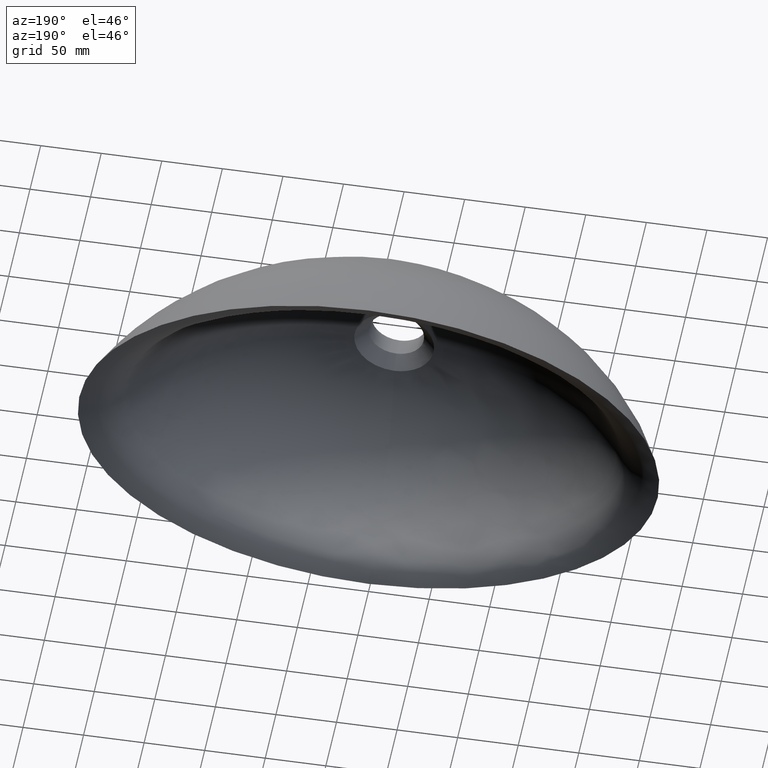
[diagram: clean part render]
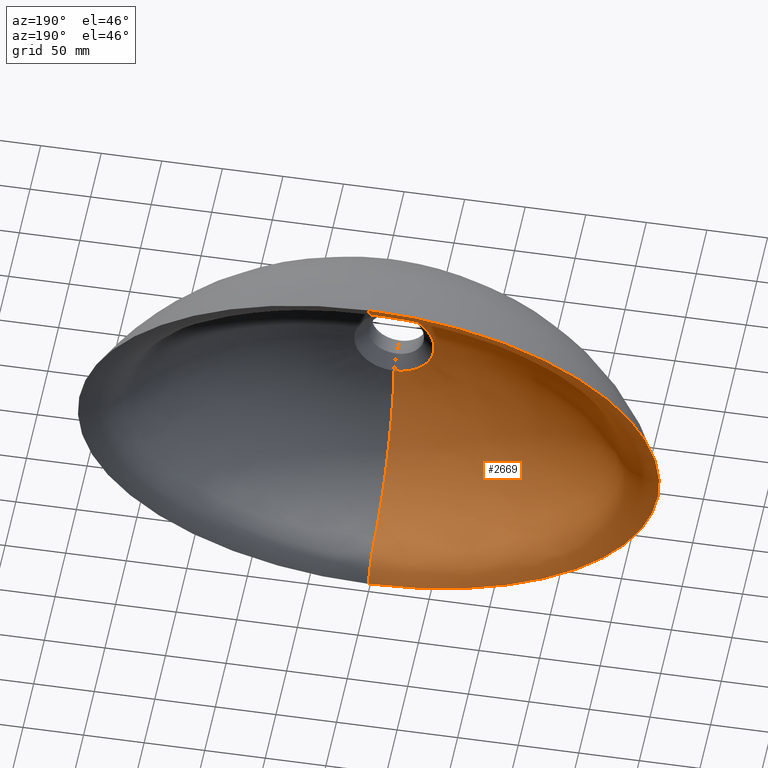
[diagram: same view with one face highlighted and labeled with its STEP entity id]
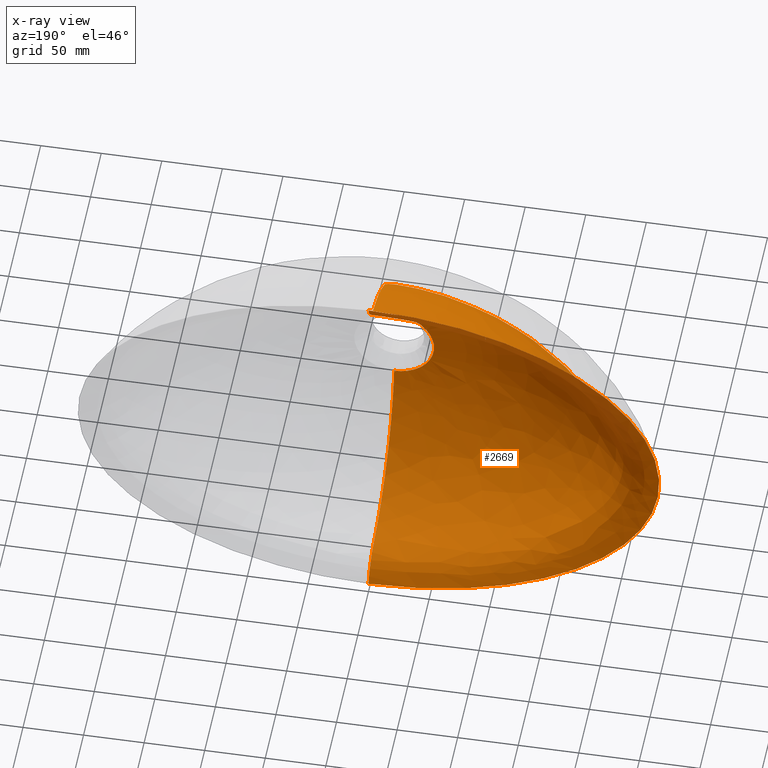
[diagram: x-ray of the same camera — body ghosted, the highlighted face saturated]
A machine part, auxiliary view. The second image highlights one B-rep face of the part: STEP entity #2669.
The next image is the same camera in x-ray: the body ghosted, the highlighted face saturated — about 0% of this face is hidden behind the body in this view.
In plain terms, the highlighted face is a freeform B-spline surface patch.
Its self-contained STEP definition (entity closure, byte-faithful):
#12 = CARTESIAN_POINT ( 'NONE',  ( -169.0597126507956000, -0.6593139088950259500, 112.5755240356672900 ) ) ;
#16 = CARTESIAN_POINT ( 'NONE',  ( 165.3181532844502900, -2.226490083101415200, -109.7495796190744000 ) ) ;
#22 = CARTESIAN_POINT ( 'NONE',  ( -1.320558246087344400E-013, -89.69102712270525000, 100.8377639535116500 ) ) ;
#23 = CARTESIAN_POINT ( 'NONE',  ( -3.158149667104887600, 0.0000000000000000000, 160.0000000000000300 ) ) ;
#36 = CARTESIAN_POINT ( 'NONE',  ( -1.595945597898662500E-013, -76.00668505586746400, 113.7130366713541600 ) ) ;
#51 = ORIENTED_EDGE ( 'NONE', *, *, #1213, .F. ) ;
#68 = CARTESIAN_POINT ( 'NONE',  ( -3.118165448068310800E-013, 0.0000000000000000000, 160.0000000000000300 ) ) ;
#71 = CARTESIAN_POINT ( 'NONE',  ( -16.87630028773804400, -120.0000000000000300, 28.79005539188280600 ) ) ;
#87 = CARTESIAN_POINT ( 'NONE',  ( -2.174909558005921900E-013, -43.38688400576848600, 132.4685475660608100 ) ) ;
#89 = ORIENTED_EDGE ( 'NONE', *, *, #2222, .T. ) ;
#136 = CARTESIAN_POINT ( 'NONE',  ( -1.023999319447374200, -120.0000000000000600, 32.98756784255958500 ) ) ;
#146 = CARTESIAN_POINT ( 'NONE',  ( -239.0678005929589200, -0.4590687697340019000, -1.901474243263070900E-013 ) ) ;
#149 = CARTESIAN_POINT ( 'NONE',  ( -230.7489631993422000, -0.4906864232858866300, 41.41896369068623300 ) ) ;
#153 = CARTESIAN_POINT ( 'NONE',  ( -116.5728268300296500, -2.451778030822814100, -134.4532953729050500 ) ) ;
#156 = CARTESIAN_POINT ( 'NONE',  ( 116.5728268300410400, -2.451778030827273200, -134.4532953729026600 ) ) ;
#159 = CARTESIAN_POINT ( 'NONE',  ( 4.833591461628407900E-012, -2.702097972742505000, -155.1501159726001300 ) ) ;
#162 = CARTESIAN_POINT ( 'NONE',  ( -5.448115916739659800E-015, -120.0000000000000300, 33.00000000000000000 ) ) ;
#163 = CARTESIAN_POINT ( 'NONE',  ( -2.502338614096544200E-013, -22.26476801525046100, 137.9631870328798000 ) ) ;
#166 = CARTESIAN_POINT ( 'NONE',  ( 60.82584771921613500, -2.627001990167568700, -149.7586325476870300 ) ) ;
#168 = CARTESIAN_POINT ( 'NONE',  ( -65.99754656662300100, -0.8230230928403260400, 152.5972215794319600 ) ) ;
#173 = CARTESIAN_POINT ( 'NONE',  ( 234.3653754005939900, 0.0000000000000000000, -42.10866222806018300 ) ) ;
#183 = CARTESIAN_POINT ( 'NONE',  ( -234.3653754005941000, 0.0000000000000000000, 42.10866222806002700 ) ) ;
#189 = CARTESIAN_POINT ( 'NONE',  ( -23.61951603177939800, -120.0000000000000300, -23.61951603177940800 ) ) ;
#190 = CARTESIAN_POINT ( 'NONE',  ( -27.96274286709546400, -0.8451203196002723400, 156.6393776489057400 ) ) ;
#194 = CARTESIAN_POINT ( 'NONE',  ( -3.109854983054193900, -0.8490198302049308800, 157.3362642479899600 ) ) ;
#195 = CARTESIAN_POINT ( 'NONE',  ( -2.057815723377487400E-013, -60.46366696049965100, 124.3420252924159500 ) ) ;
#198 = CARTESIAN_POINT ( 'NONE',  ( -7.256328293792637200, -0.8487036536694226900, 157.2808926157290400 ) ) ;
#203 = CARTESIAN_POINT ( 'NONE',  ( -16.87630028773803700, -120.0000000000000000, -28.79005539188281300 ) ) ;
#205 = CARTESIAN_POINT ( 'NONE',  ( -2.057815723377487400E-013, -60.46366696049965100, 124.3420252924159500 ) ) ;
#206 = CARTESIAN_POINT ( 'NONE',  ( -121.0583653088586300, 0.0000000000000000000, 140.2562180888824300 ) ) ;
#209 = CARTESIAN_POINT ( 'NONE',  ( 169.0597126507970500, -0.6593139088956071500, -112.5755240356667300 ) ) ;
#211 = CARTESIAN_POINT ( 'NONE',  ( -5.448115916739659800E-015, -120.0000000000000300, 33.00000000000000000 ) ) ;
#219 = CARTESIAN_POINT ( 'NONE',  ( -3.946321791925900600, -120.0000000000001100, 32.84426857135493100 ) ) ;
#227 = CARTESIAN_POINT ( 'NONE',  ( -60.82584771920700500, -2.627001990166964300, -149.7586325476856600 ) ) ;
#233 = CARTESIAN_POINT ( 'NONE',  ( -9.317081241428123700, -120.0000000000000000, 31.94578056316644400 ) ) ;
#235 = CARTESIAN_POINT ( 'NONE',  ( -171.6977681166120800, 0.0000000000000000000, 114.4651787444076200 ) ) ;
#237 = CARTESIAN_POINT ( 'NONE',  ( -119.2038032442643100, -0.7541668695500582900, 137.9308143298177100 ) ) ;
#240 = CARTESIAN_POINT ( 'NONE',  ( -207.1435331296597400, -0.5644609482399317600, 79.37925262575409100 ) ) ;
#243 = CARTESIAN_POINT ( 'NONE',  ( 119.2038032442665200, -0.7541668695507638400, -137.9308143298170300 ) ) ;
#248 = CARTESIAN_POINT ( 'NONE',  ( -7.369015889910913900, 0.0000000000000000000, 159.9436537540059900 ) ) ;
#252 = CARTESIAN_POINT ( 'NONE',  ( 2.725960106158789000, -22.26476801525040700, 137.9631870328798000 ) ) ;
#255 = CARTESIAN_POINT ( 'NONE',  ( -169.0597126507927300, -0.6593139088938656500, -112.5755240356678800 ) ) ;
#260 = CARTESIAN_POINT ( 'NONE',  ( -0.4388568511917394500, -120.0000000000000400, 33.00000000000000000 ) ) ;
#279 = VERTEX_POINT ( 'NONE', #2513 ) ;
#283 = CARTESIAN_POINT ( 'NONE',  ( -28.39700889706448100, 0.0000000000000000000, 159.2908634255087700 ) ) ;
#290 = CARTESIAN_POINT ( 'NONE',  ( -95.99088414694732300, -43.27554820360093400, -115.9533183323259400 ) ) ;
#291 = CARTESIAN_POINT ( 'NONE',  ( -32.17118950397242800, -120.0000000000000300, -8.777137023834559000 ) ) ;
#294 = CARTESIAN_POINT ( 'NONE',  ( 65.99754656662227600, -0.8230230928400635900, 152.5972215794317900 ) ) ;
#297 = CARTESIAN_POINT ( 'NONE',  ( -171.6977681166116000, 0.0000000000000000000, -114.4651787444079100 ) ) ;
#304 = CARTESIAN_POINT ( 'NONE',  ( -207.1435331296577500, -0.5644609482390199300, -79.37925262575460300 ) ) ;
#307 = CARTESIAN_POINT ( 'NONE',  ( 7.369015889910233600, 0.0000000000000000000, 159.9436537540059600 ) ) ;
#308 = CARTESIAN_POINT ( 'NONE',  ( -32.17118950397242100, -120.0000000000000300, 8.777137023834550100 ) ) ;
#309 = CARTESIAN_POINT ( 'NONE',  ( 3.158149667104207700, 0.0000000000000000000, 160.0000000000000300 ) ) ;
#313 = CARTESIAN_POINT ( 'NONE',  ( -33.41440524801378600, -120.0000000000000300, -6.071532165918824800E-015 ) ) ;
#314 = CARTESIAN_POINT ( 'NONE',  ( 207.1435331296604000, -0.5644609482402643800, -79.37925262575372200 ) ) ;
#330 = CARTESIAN_POINT ( 'NONE',  ( -2.268926569098966200, -60.46366696049961600, 124.3420252924159000 ) ) ;
#331 = CARTESIAN_POINT ( 'NONE',  ( -7.546047120499110900E-014, -110.3461389781540400, 69.53193003429275600 ) ) ;
#341 = CARTESIAN_POINT ( 'NONE',  ( -28.79005539188280600, -120.0000000000000300, -16.87630028773804700 ) ) ;
#449 = CARTESIAN_POINT ( 'NONE',  ( 63.16299334209050900, 0.0000000000000000000, -156.2435836003959400 ) ) ;
#454 = CARTESIAN_POINT ( 'NONE',  ( -3.059618530754093500E-013, -0.8490198302049244400, 157.3362642479899300 ) ) ;
#458 = CARTESIAN_POINT ( 'NONE',  ( 239.0678005929587500, -0.4590687697339604400, 4.904553919548917200E-014 ) ) ;
#461 = CARTESIAN_POINT ( 'NONE',  ( 230.7489631993422300, -0.4906864232859701200, -41.41896369068612700 ) ) ;
#465 = CARTESIAN_POINT ( 'NONE',  ( 7.256328293791969300, -0.8487036536693931500, 157.2808926157289900 ) ) ;
#466 = CARTESIAN_POINT ( 'NONE',  ( -151.3359912433865900, -61.46237176387778300, 62.56547349274593700 ) ) ;
#469 = CARTESIAN_POINT ( 'NONE',  ( 27.96274286709477500, -0.8451203196001595400, 156.6393776489056500 ) ) ;
#511 = CARTESIAN_POINT ( 'NONE',  ( -5.448115916739659800E-015, -120.0000000000000300, 33.00000000000000000 ) ) ;
#514 = ORIENTED_EDGE ( 'NONE', *, *, #2192, .T. ) ;
#525 = CARTESIAN_POINT ( 'NONE',  ( -210.3843271333239800, 0.0000000000000000000, 80.70557687257186800 ) ) ;
#532 = CARTESIAN_POINT ( 'NONE',  ( -234.3653754005939600, 0.0000000000000000000, -42.10866222806041000 ) ) ;
#535 = CARTESIAN_POINT ( 'NONE',  ( -174.9914414619552200, -61.83226243179695600, -3.337039631928945700E-013 ) ) ;
#537 = CARTESIAN_POINT ( 'NONE',  ( -4.971068145928711400E-010, 0.0000000000000000000, -160.0000000000000300 ) ) ;
#542 = CARTESIAN_POINT ( 'NONE',  ( -210.3843271333236400, 0.0000000000000000000, -80.70557687257218000 ) ) ;
#545 = CARTESIAN_POINT ( 'NONE',  ( -171.6977681166116000, 0.0000000000000000000, -114.4651787444079100 ) ) ;
#550 = CARTESIAN_POINT ( 'NONE',  ( -63.16299334209026000, 0.0000000000000000000, -156.2435836003961400 ) ) ;
#556 = CARTESIAN_POINT ( 'NONE',  ( -230.7489631993412000, -0.4906864232853888600, -41.41896369068666700 ) ) ;
#559 = CARTESIAN_POINT ( 'NONE',  ( 62.19709966107903700, -0.8279413945039176800, -153.6448220972616800 ) ) ;
#560 = CARTESIAN_POINT ( 'NONE',  ( 3.109854983053526000, -0.8490198302049181100, 157.3362642479899000 ) ) ;
#564 = CARTESIAN_POINT ( 'NONE',  ( -3.059618530754093500E-013, -0.8490198302049244400, 157.3362642479899300 ) ) ;
#566 = CARTESIAN_POINT ( 'NONE',  ( -2.886146183156412800E-013, -2.677065978550764200, 153.3529548309622900 ) ) ;
#568 = CARTESIAN_POINT ( 'NONE',  ( 207.1435331296585800, -0.5644609482393522200, 79.37925262575402000 ) ) ;
#569 = CARTESIAN_POINT ( 'NONE',  ( 230.7489631993413200, -0.4906864232854719600, 41.41896369068630400 ) ) ;
#577 = CARTESIAN_POINT ( 'NONE',  ( -3.118165448068310800E-013, 0.0000000000000000000, 160.0000000000000300 ) ) ;
#579 = CARTESIAN_POINT ( 'NONE',  ( 121.0583653088580300, 0.0000000000000000000, 140.2562180888825200 ) ) ;
#580 = CARTESIAN_POINT ( 'NONE',  ( 171.6977681166116300, 0.0000000000000000000, 114.4651787444077900 ) ) ;
#584 = CARTESIAN_POINT ( 'NONE',  ( 1.560538379932513900E-013, 0.0000000000000000000, -161.8782081998020300 ) ) ;
#586 = CARTESIAN_POINT ( 'NONE',  ( -121.0583653088579400, 0.0000000000000000000, -140.2562180888824900 ) ) ;
#605 = B_SPLINE_CURVE_WITH_KNOTS ( 'NONE', 3,
 ( #2353, #2924, #2540, #2756, #297, #2743, #2722, #2727, #2729, #2715, #2698, #2710, #2702, #2704, #1496, #2696, #2662 ),
 .UNSPECIFIED., .F., .F.,
 ( 4, 1, 1, 1, 1, 1, 1, 1, 1, 1, 1, 1, 1, 1, 4 ),
 ( 0.5000000000000000000, 0.5416666666675685700, 0.5833333333341533800, 0.6250000000007378500, 0.6666666666673226600, 0.7083333333339073600, 0.7500000000004922700, 0.7916666666670766400, 0.8333333333336614400, 0.8750000000002460300, 0.9166666666668306100, 0.9583333333334154200, 0.9916666666666831300, 0.9937500000000122300, 1.000000000000000000 ),
 .UNSPECIFIED. ) ;
#667 = CARTESIAN_POINT ( 'NONE',  ( 169.0597126507944400, -0.6593139088944463000, 112.5755240356671900 ) ) ;
#670 = CARTESIAN_POINT ( 'NONE',  ( 234.3653754005939900, 0.0000000000000000000, 42.10866222806029700 ) ) ;
#672 = CARTESIAN_POINT ( 'NONE',  ( 210.3843271333236900, 0.0000000000000000000, 80.70557687257205300 ) ) ;
#675 = CARTESIAN_POINT ( 'NONE',  ( 67.02268480654146300, 0.0000000000000000000, 155.1777592329617300 ) ) ;
#677 = CARTESIAN_POINT ( 'NONE',  ( 171.6977681166117400, 0.0000000000000000000, -114.4651787444076900 ) ) ;
#683 = CARTESIAN_POINT ( 'NONE',  ( 121.0583653088582000, 0.0000000000000000000, -140.2562180888824300 ) ) ;
#686 = CARTESIAN_POINT ( 'NONE',  ( 210.3843271333237200, 0.0000000000000000000, -80.70557687257196700 ) ) ;
#725 = CARTESIAN_POINT ( 'NONE',  ( 28.39700889706379900, 0.0000000000000000000, 159.2908634255087500 ) ) ;
#736 = CARTESIAN_POINT ( 'NONE',  ( 242.8173122997031600, 0.0000000000000000000, 5.145555747980423700E-014 ) ) ;
#772 = CARTESIAN_POINT ( 'NONE',  ( -6.908711260444515000E-011, -120.0000000000000000, -33.00000000000001400 ) ) ;
#779 = CARTESIAN_POINT ( 'NONE',  ( 119.2038032442633000, -0.7541668695496025500, 137.9308143298175400 ) ) ;
#782 = CARTESIAN_POINT ( 'NONE',  ( -242.8173122997031900, 0.0000000000000000000, -2.002860225759628400E-013 ) ) ;
#784 = CARTESIAN_POINT ( 'NONE',  ( -119.2038032442606000, -0.7541668695488976700, -137.9308143298180800 ) ) ;
#789 = CARTESIAN_POINT ( 'NONE',  ( -62.19709966107423300, -0.8279413945036689900, -153.6448220972612800 ) ) ;
#796 = CARTESIAN_POINT ( 'NONE',  ( 2.541934815117149600E-012, -0.8595590480554915500, -159.1819853233541600 ) ) ;
#815 = ORIENTED_EDGE ( 'NONE', *, *, #2752, .T. ) ;
#831 = B_SPLINE_CURVE_WITH_KNOTS ( 'NONE', 3,
 ( #1083, #1085, #1074, #1068, #1065, #1064, #1058, #1056, #1055, #1046, #1043, #1040, #1034, #1031, #1030, #1028, #1026, #1022 ),
 .UNSPECIFIED., .F., .F.,
 ( 4, 1, 1, 1, 1, 1, 2, 1, 1, 1, 1, 1, 1, 1, 4 ),
 ( 0.0000000000000000000, 0.04507914127680634500, 0.06761871191520951700, 0.09015828255361269000, 0.1126978531920158500, 0.1352374238304190300, 0.1803165651072253800, 0.2827769944688222100, 0.3852374238304190900, 0.4876978531920159700, 0.5901582825536126900, 0.6926187119152095200, 0.7950791412768065700, 0.8975395706384033900, 1.000000000000000000 ),
 .UNSPECIFIED. ) ;
#853 = CARTESIAN_POINT ( 'NONE',  ( 6.360573581037511000, -22.26192822873499500, 137.9145347544897500 ) ) ;
#866 = CARTESIAN_POINT ( 'NONE',  ( -225.6260782627913100, -1.825978176031859400, 40.38748943737241600 ) ) ;
#868 = CARTESIAN_POINT ( 'NONE',  ( -165.3181532844471900, -2.226490083100003000, 109.7495796190758600 ) ) ;
#872 = CARTESIAN_POINT ( 'NONE',  ( -202.5495916763100300, -2.001202135374283000, 77.39574260809078500 ) ) ;
#876 = CARTESIAN_POINT ( 'NONE',  ( -27.34623713060367900, -2.667804140699950600, 152.6743791626397200 ) ) ;
#880 = CARTESIAN_POINT ( 'NONE',  ( -116.5728268300362500, -2.451778030825576800, 134.4532953729042200 ) ) ;
#884 = CARTESIAN_POINT ( 'NONE',  ( -64.54231299326707500, -2.615320392878093700, 148.7382767360344100 ) ) ;
#886 = CARTESIAN_POINT ( 'NONE',  ( -233.7581978281122900, -1.750882193456176000, -1.714700799998694300E-013 ) ) ;
#890 = CARTESIAN_POINT ( 'NONE',  ( -7.096348900575026900, -2.676315018725046200, 153.2990399967131900 ) ) ;
#893 = CARTESIAN_POINT ( 'NONE',  ( -3.041292385960921300, -2.677065978550778900, 153.3529548309623200 ) ) ;
#924 = B_SPLINE_CURVE_WITH_KNOTS ( 'NONE', 3,
 ( #162, #260, #136, #219, #233, #71, #1186, #2703, #308, #313, #291, #341, #189, #203, #2124, #1628, #772 ),
 .UNSPECIFIED., .F., .F.,
 ( 4, 1, 1, 1, 1, 1, 1, 1, 1, 1, 1, 1, 1, 1, 4 ),
 ( 0.0000000000000000000, 0.006249999999987794000, 0.008333333333316910600, 0.04166666666658466700, 0.08333333333316944600, 0.1249999999997540000, 0.1666666666663387800, 0.2083333333329235600, 0.2499999999995080600, 0.2916666666660929200, 0.3333333333326776700, 0.3749999999992624800, 0.4166666666658470100, 0.4583333333324317600, 0.5000000000000004400 ),
 .UNSPECIFIED. ) ;
#935 = CARTESIAN_POINT ( 'NONE',  ( 219.3463435980551700, -4.610980713955167500, -39.13062927559757800 ) ) ;
#938 = CARTESIAN_POINT ( 'NONE',  ( -2.970713952610282100E-013, -9.380831405176930800, 145.2442220442158300 ) ) ;
#942 = CARTESIAN_POINT ( 'NONE',  ( -225.6260782627894600, -1.825978176030675900, -40.38748943737289200 ) ) ;
#944 = CARTESIAN_POINT ( 'NONE',  ( 202.5495916763114200, -2.001202135375115300, -77.39574260808974800 ) ) ;
#947 = CARTESIAN_POINT ( 'NONE',  ( 26.58792309105400500, -6.208374867434177900, 147.8590024089741600 ) ) ;
#950 = CARTESIAN_POINT ( 'NONE',  ( -2.931682674400804000E-013, -6.225949528058508000, 148.5156309788365800 ) ) ;
#953 = CARTESIAN_POINT ( 'NONE',  ( 166.8151940106761200, -43.05287659926985100, -66.73033289782532100 ) ) ;
#954 = CARTESIAN_POINT ( 'NONE',  ( 62.75254770841794300, -6.108785123897387600, 144.0501031449686300 ) ) ;
#964 = CARTESIAN_POINT ( 'NONE',  ( -165.3181532844419300, -2.226490083097242500, -109.7495796190768100 ) ) ;
#965 = CARTESIAN_POINT ( 'NONE',  ( 113.3402475697298100, -5.798457783147432200, 130.2245594439051500 ) ) ;
#970 = CARTESIAN_POINT ( 'NONE',  ( 233.7581978281118600, -1.750882193456132100, 2.461383005729488900E-014 ) ) ;
#975 = CARTESIAN_POINT ( 'NONE',  ( 219.3463435980531200, -4.610980713952924900, 39.13062927559786900 ) ) ;
#977 = CARTESIAN_POINT ( 'NONE',  ( -202.5495916763063900, -2.001202135372114100, -77.39574260809152400 ) ) ;
#982 = CARTESIAN_POINT ( 'NONE',  ( 227.2531108554384800, -4.468483465650412400, 2.326324044061837300E-014 ) ) ;
#984 = CARTESIAN_POINT ( 'NONE',  ( 196.9121688652914500, -4.943474293331148800, -74.98136033412447400 ) ) ;
#988 = CARTESIAN_POINT ( 'NONE',  ( 3.041292385960289800, -2.677065978550749600, 153.3529548309622900 ) ) ;
#993 = CARTESIAN_POINT ( 'NONE',  ( -2.931682674400804000E-013, -6.225949528058508000, 148.5156309788365800 ) ) ;
#1000 = CARTESIAN_POINT ( 'NONE',  ( -2.886146183156412800E-013, -2.677065978550764200, 153.3529548309622900 ) ) ;
#1001 = CARTESIAN_POINT ( 'NONE',  ( -2.886146183156412800E-013, -2.677065978550764200, 153.3529548309622900 ) ) ;
#1003 = CARTESIAN_POINT ( 'NONE',  ( 225.6260782627896900, -1.825978176030927000, 40.38748943737216000 ) ) ;
#1006 = CARTESIAN_POINT ( 'NONE',  ( 7.096348900574395400, -2.676315018724978200, 153.2990399967131300 ) ) ;
#1008 = CARTESIAN_POINT ( 'NONE',  ( -2.956957028773711900, -6.225949528058536400, 148.5156309788366400 ) ) ;
#1012 = CARTESIAN_POINT ( 'NONE',  ( 202.5495916763080100, -2.001202135372953400, 77.39574260809027400 ) ) ;
#1014 = CARTESIAN_POINT ( 'NONE',  ( 116.5728268300349000, -2.451778030824520700, 134.4532953729037100 ) ) ;
#1015 = CARTESIAN_POINT ( 'NONE',  ( 27.34623713060301500, -2.667804140699688600, 152.6743791626395500 ) ) ;
#1017 = CARTESIAN_POINT ( 'NONE',  ( 64.54231299326627900, -2.615320392877484900, 148.7382767360340100 ) ) ;
#1019 = CARTESIAN_POINT ( 'NONE',  ( 165.3181532844453200, -2.226490083098664000, 109.7495796190752800 ) ) ;
#1022 = CARTESIAN_POINT ( 'NONE',  ( -6.908711260444515000E-011, -120.0000000000000000, -33.00000000000001400 ) ) ;
#1023 = CARTESIAN_POINT ( 'NONE',  ( -219.3463435980528400, -4.610980713952511900, -39.13062927559895600 ) ) ;
#1024 = CARTESIAN_POINT ( 'NONE',  ( -227.2531108554389600, -4.468483465650560800, -1.650706713083715900E-013 ) ) ;
#1026 = CARTESIAN_POINT ( 'NONE',  ( -9.205140299526871800E-011, -119.2745504031701000, -39.31296023266396800 ) ) ;
#1027 = CARTESIAN_POINT ( 'NONE',  ( 160.7228207369373900, -5.370966038242322300, -106.3106505154085700 ) ) ;
#1028 = CARTESIAN_POINT ( 'NONE',  ( -1.381869283998745700E-010, -116.8327630824318100, -51.76734199862837500 ) ) ;
#1029 = CARTESIAN_POINT ( 'NONE',  ( -160.7228207369275900, -5.370966038234446800, -106.3106505154121800 ) ) ;
#1030 = CARTESIAN_POINT ( 'NONE',  ( -2.055080386328463600E-010, -110.3461389781541900, -69.53193003429258600 ) ) ;
#1031 = CARTESIAN_POINT ( 'NONE',  ( -2.684548142824530100E-010, -101.2240497417568600, -86.00458308663225200 ) ) ;
#1032 = CARTESIAN_POINT ( 'NONE',  ( 113.3402475697370300, -5.798457783152654700, -130.2245594439037900 ) ) ;
#1034 = CARTESIAN_POINT ( 'NONE',  ( -3.245650311008117900E-010, -89.69102712270537800, -100.8377639535112700 ) ) ;
#1035 = CARTESIAN_POINT ( 'NONE',  ( 59.13914057547266600, -6.130951362523495300, -145.0376419807604700 ) ) ;
#1039 = CARTESIAN_POINT ( 'NONE',  ( 5.691817254072628500E-012, -6.273448610826283000, -150.2546254778754100 ) ) ;
#1040 = CARTESIAN_POINT ( 'NONE',  ( -3.714273463920110100E-010, -76.00668505586753600, -113.7130366713546300 ) ) ;
#1041 = CARTESIAN_POINT ( 'NONE',  ( -59.13914057546191600, -6.130951362522363700, -145.0376419807583100 ) ) ;
#1043 = CARTESIAN_POINT ( 'NONE',  ( -4.070203217917971100E-010, -60.46366696049962300, -124.3420252924155300 ) ) ;
#1044 = CARTESIAN_POINT ( 'NONE',  ( -113.3402475697236300, -5.798457783144225000, -130.2245594439074800 ) ) ;
#1046 = CARTESIAN_POINT ( 'NONE',  ( -4.294226573845957400E-010, -43.38688400576850800, -132.4685475660609500 ) ) ;
#1047 = CARTESIAN_POINT ( 'NONE',  ( -219.3463435980550000, -4.610980713954757200, 39.13062927559838800 ) ) ;
#1050 = CARTESIAN_POINT ( 'NONE',  ( -2.897310451332312000, -9.380831405176969900, 145.2442220442158300 ) ) ;
#1053 = CARTESIAN_POINT ( 'NONE',  ( -196.9121688652897400, -4.943474293329623800, 74.98136033412610900 ) ) ;
#1055 = CARTESIAN_POINT ( 'NONE',  ( -4.345708864263333700E-010, -31.21691184184210100, -136.0693430366981700 ) ) ;
#1056 = CARTESIAN_POINT ( 'NONE',  ( -4.345244450190145200E-010, -22.26476801525046800, -137.9631870328798000 ) ) ;
#1057 = CARTESIAN_POINT ( 'NONE',  ( -160.7228207369337000, -5.370966038239686200, 106.3106505154107000 ) ) ;
#1058 = CARTESIAN_POINT ( 'NONE',  ( -4.369093432567685300E-010, -18.11875222314843700, -139.3841232326810200 ) ) ;
#1063 = CARTESIAN_POINT ( 'NONE',  ( -113.3402475697313200, -5.798457783149467900, 130.2245594439059500 ) ) ;
#1064 = CARTESIAN_POINT ( 'NONE',  ( -4.439785401240797400E-010, -12.95106980682317000, -142.4319642623789300 ) ) ;
#1065 = CARTESIAN_POINT ( 'NONE',  ( -4.511400841594546500E-010, -9.380831405176923700, -145.2442220442154100 ) ) ;
#1066 = CARTESIAN_POINT ( 'NONE',  ( -62.75254770841877400, -6.108785123898557300, 144.0501031449692300 ) ) ;
#1068 = CARTESIAN_POINT ( 'NONE',  ( -4.599877837921853900E-010, -6.225949528058498200, -148.5156309788367500 ) ) ;
#1069 = CARTESIAN_POINT ( 'NONE',  ( -26.58792309105468000, -6.208374867434683300, 147.8590024089744500 ) ) ;
#1072 = CARTESIAN_POINT ( 'NONE',  ( -6.899566400471534200, -6.224524555575540900, 148.4634611438654600 ) ) ;
#1074 = CARTESIAN_POINT ( 'NONE',  ( -4.741084920970559100E-010, -2.677065978550758900, -153.3529548309622300 ) ) ;
#1076 = CARTESIAN_POINT ( 'NONE',  ( 2.956957028773072400, -6.225949528058480500, 148.5156309788365500 ) ) ;
#1079 = CARTESIAN_POINT ( 'NONE',  ( -6.760391053108264700, -9.378891634480499600, 145.1932123820555200 ) ) ;
#1081 = CARTESIAN_POINT ( 'NONE',  ( -61.48686210840217100, -9.221339147908025800, 140.8780104336715900 ) ) ;
#1083 = CARTESIAN_POINT ( 'NONE',  ( -4.971068145928711400E-010, 0.0000000000000000000, -160.0000000000000300 ) ) ;
#1085 = CARTESIAN_POINT ( 'NONE',  ( -4.871545560690668800E-010, -0.8490198302049254400, -157.3362642479899000 ) ) ;
#1086 = CARTESIAN_POINT ( 'NONE',  ( 175.7086976035817300, -29.66198281174319400, 68.62369734037957900 ) ) ;
#1091 = CARTESIAN_POINT ( 'NONE',  ( -111.0560052530750400, -8.798900196221291400, 127.3600659023983200 ) ) ;
#1096 = CARTESIAN_POINT ( 'NONE',  ( 87.08160067778753400, -60.79656856162697700, 108.7397952184870500 ) ) ;
#1105 = CARTESIAN_POINT ( 'NONE',  ( -157.4765957956877600, -8.216968987264630500, 103.9790814338238900 ) ) ;
#1116 = CARTESIAN_POINT ( 'NONE',  ( -192.9324420990671200, -7.635037778307594000, 73.34391305096599500 ) ) ;
#1123 = CARTESIAN_POINT ( 'NONE',  ( 123.4497204824250600, -61.12947016275367000, 88.68134781294071400 ) ) ;
#1127 = CARTESIAN_POINT ( 'NONE',  ( 143.3836946230879900, -30.18029248844229400, 97.27806007217273500 ) ) ;
#1136 = CARTESIAN_POINT ( 'NONE',  ( -214.9169268566477100, -7.182424615784942300, 38.27713014288616500 ) ) ;
#1142 = CARTESIAN_POINT ( 'NONE',  ( 48.15873600169617700, -60.55490665858666700, 120.5045592365673600 ) ) ;
#1151 = CARTESIAN_POINT ( 'NONE',  ( 101.1254262636155400, -30.69860216514811300, -119.1977929804830000 ) ) ;
#1184 = CARTESIAN_POINT ( 'NONE',  ( -26.05161199798705600, -9.356907566586823300, 144.6021965901028100 ) ) ;
#1186 = CARTESIAN_POINT ( 'NONE',  ( -23.61951603177939800, -120.0000000000000300, 23.61951603177940500 ) ) ;
#1202 = CARTESIAN_POINT ( 'NONE',  ( -3.118165448068310800E-013, 0.0000000000000000000, 160.0000000000000300 ) ) ;
#1213 = EDGE_CURVE ( 'NONE', #2507, #279, #831, .T. ) ;
#1230 = CARTESIAN_POINT ( 'NONE',  ( -195.8227654874936500, -29.25885306320200000, 35.78680821095394300 ) ) ;
#1247 = CARTESIAN_POINT ( 'NONE',  ( -185.9751313382201700, -42.96628208647321400, 34.77858017564651800 ) ) ;
#1255 = CARTESIAN_POINT ( 'NONE',  ( 136.1000879919402600, -43.16421240143660000, -94.59641102061914400 ) ) ;
#1277 = CARTESIAN_POINT ( 'NONE',  ( 196.9121688652874100, -4.943474293327044600, 74.98136033412518500 ) ) ;
#1294 = CARTESIAN_POINT ( 'NONE',  ( -40.15680257977450700, -76.14306705035475900, -110.9496667185141400 ) ) ;
#1296 = CARTESIAN_POINT ( 'NONE',  ( -222.6666963512424500, -6.988447546131449300, -1.429238800299803200E-013 ) ) ;
#1310 = CARTESIAN_POINT ( 'NONE',  ( -5.624574175703478900E-011, -75.93849405862434300, -115.0947216477781200 ) ) ;
#1367 = CARTESIAN_POINT ( 'NONE',  ( -2.651958513899543800E-013, -18.11875222314844400, 139.3841232326811300 ) ) ;
#1368 = CARTESIAN_POINT ( 'NONE',  ( -149.4355507089029800, -78.32517896213828100, -29.76561494902602000 ) ) ;
#1375 = CARTESIAN_POINT ( 'NONE',  ( -214.9169268566457700, -7.182424615781884300, -38.27713014288667600 ) ) ;
#1385 = CARTESIAN_POINT ( 'NONE',  ( -192.9324420990633100, -7.635037778301989600, -73.34391305096690400 ) ) ;
#1391 = CARTESIAN_POINT ( 'NONE',  ( -157.4765957956822100, -8.216968987257502000, -103.9790814338252000 ) ) ;
#1410 = CARTESIAN_POINT ( 'NONE',  ( -111.0560052530680800, -8.798900196214155800, -127.3600659023995700 ) ) ;
#1421 = CARTESIAN_POINT ( 'NONE',  ( -57.94620902663439900, -9.251513358741259900, -141.8435779001891900 ) ) ;
#1427 = CARTESIAN_POINT ( 'NONE',  ( 5.138527399981923200E-012, -9.445490428394373700, -146.9445441162278900 ) ) ;
#1429 = CARTESIAN_POINT ( 'NONE',  ( 57.94620902664410500, -9.251513358742791100, -141.8435779001917200 ) ) ;
#1442 = CARTESIAN_POINT ( 'NONE',  ( 111.0560052530801300, -8.798900196225616800, -127.3600659023954100 ) ) ;
#1459 = CARTESIAN_POINT ( 'NONE',  ( -3.606880011673342400E-011, -43.39925465045367000, -134.0492318814339100 ) ) ;
#1471 = CARTESIAN_POINT ( 'NONE',  ( 157.4765957956909700, -8.216968987268201000, -103.9790814338211600 ) ) ;
#1473 = CARTESIAN_POINT ( 'NONE',  ( 192.9324420990685100, -7.635037778309641300, -73.34391305096397700 ) ) ;
#1477 = CARTESIAN_POINT ( 'NONE',  ( 214.9169268566477100, -7.182424615785469000, -38.27713014288519100 ) ) ;
#1479 = CARTESIAN_POINT ( 'NONE',  ( 222.6666963512418200, -6.988447546131212100, 2.300978254378098400E-015 ) ) ;
#1481 = CARTESIAN_POINT ( 'NONE',  ( 214.9169268566458600, -7.182424615782414500, 38.27713014288551100 ) ) ;
#1491 = CARTESIAN_POINT ( 'NONE',  ( 192.9324420990648700, -7.635037778304051100, 73.34391305096490000 ) ) ;
#1496 = CARTESIAN_POINT ( 'NONE',  ( -7.369015889910913900, 0.0000000000000000000, 159.9436537540059900 ) ) ;
#1499 = CARTESIAN_POINT ( 'NONE',  ( 157.4765957956857400, -8.216968987261086700, 103.9790814338227300 ) ) ;
#1502 = CARTESIAN_POINT ( 'NONE',  ( 111.0560052530735900, -8.798900196218502500, 127.3600659023973500 ) ) ;
#1505 = B_SPLINE_CURVE_WITH_KNOTS ( 'NONE', 3,
 ( #1511, #2963, #1001, #2771, #2270, #2329, #1367, #2824, #2580, #87, #205, #36, #22, #2471, #331, #2843, #2801, #211 ),
 .UNSPECIFIED., .F., .F.,
 ( 4, 1, 1, 1, 1, 1, 2, 1, 1, 1, 1, 1, 1, 1, 4 ),
 ( 0.0000000000000000000, 0.04507914127680634500, 0.06761871191520951700, 0.09015828255361269000, 0.1126978531920158500, 0.1352374238304190300, 0.1803165651072253800, 0.2827769944688222100, 0.3852374238304190900, 0.4876978531920159700, 0.5901582825536126900, 0.6926187119152095200, 0.7950791412768065700, 0.8975395706384033900, 1.000000000000000000 ),
 .UNSPECIFIED. ) ;
#1511 = CARTESIAN_POINT ( 'NONE',  ( -3.118165448068310800E-013, 0.0000000000000000000, 160.0000000000000300 ) ) ;
#1531 = CARTESIAN_POINT ( 'NONE',  ( -133.9376254141593000, -77.84784198143802300, -57.18413739100829900 ) ) ;
#1534 = CARTESIAN_POINT ( 'NONE',  ( -109.2516408261666800, -77.23412300625084000, -81.02846075288056200 ) ) ;
#1536 = CARTESIAN_POINT ( 'NONE',  ( -77.08891870600665200, -76.62040403106240700, -99.37137052768747500 ) ) ;
#1538 = CARTESIAN_POINT ( 'NONE',  ( -166.8151940107153700, -43.05287659926838000, -66.73033289781859900 ) ) ;
#1550 = CARTESIAN_POINT ( 'NONE',  ( -53.10627050043208900, -43.35636974887856400, 128.4169215617818600 ) ) ;
#1553 = CARTESIAN_POINT ( 'NONE',  ( -2.502154190570207600, -43.38688400576850100, 132.4685475660607800 ) ) ;
#1559 = CARTESIAN_POINT ( 'NONE',  ( 61.48686210840133300, -9.221339147906421700, 140.8780104336709700 ) ) ;
#1562 = CARTESIAN_POINT ( 'NONE',  ( -95.99088414690189100, -43.27554820360229100, 115.9533183323297200 ) ) ;
#1578 = CARTESIAN_POINT ( 'NONE',  ( 26.05161199798637700, -9.356907566586135900, 144.6021965901025200 ) ) ;
#1595 = CARTESIAN_POINT ( 'NONE',  ( 6.760391053107616300, -9.378891634480320100, 145.1932123820554100 ) ) ;
#1597 = CARTESIAN_POINT ( 'NONE',  ( 6.152859488524099700, -31.21518414291964700, 136.0210371144701200 ) ) ;
#1600 = CARTESIAN_POINT ( 'NONE',  ( -109.2516408261092400, -77.23412300624326600, 81.02846075288613300 ) ) ;
#1601 = CARTESIAN_POINT ( 'NONE',  ( 185.9751313382170400, -42.96628208647331300, -34.77858017564938100 ) ) ;
#1603 = CARTESIAN_POINT ( 'NONE',  ( 101.1254262636406200, -30.69860216514173200, 119.1977929804815400 ) ) ;
#1605 = CARTESIAN_POINT ( 'NONE',  ( 2.897310451331666800, -9.380831405176893500, 145.2442220442158300 ) ) ;
#1608 = CARTESIAN_POINT ( 'NONE',  ( -185.9751313382333800, -42.96628208647263100, -34.77858017564634000 ) ) ;
#1611 = CARTESIAN_POINT ( 'NONE',  ( -2.970713952610282100E-013, -9.380831405176930800, 145.2442220442158300 ) ) ;
#1614 = CARTESIAN_POINT ( 'NONE',  ( -67.02268480654207400, 0.0000000000000000000, 155.1777592329617600 ) ) ;
#1619 = CARTESIAN_POINT ( 'NONE',  ( 192.7651343119075300, -42.92917015241745600, 1.433174684728684400E-013 ) ) ;
#1627 = CARTESIAN_POINT ( 'NONE',  ( -136.1000879920038400, -43.16421240143454700, -94.59641102060969300 ) ) ;
#1628 = CARTESIAN_POINT ( 'NONE',  ( -2.925712341347206800, -120.0000000000000000, -32.99999999999023000 ) ) ;
#1631 = CARTESIAN_POINT ( 'NONE',  ( 2.636939780795894500, -31.21691184184202000, 136.0693430366981400 ) ) ;
#1634 = CARTESIAN_POINT ( 'NONE',  ( 23.71069720232416200, -31.19560355513302600, 135.4616711289463900 ) ) ;
#1636 = CARTESIAN_POINT ( 'NONE',  ( -136.1000879919671700, -43.16421240143590400, 94.59641102061262100 ) ) ;
#1646 = CARTESIAN_POINT ( 'NONE',  ( -2.174909558005921900E-013, -43.38688400576848600, 132.4685475660608100 ) ) ;
#1648 = CARTESIAN_POINT ( 'NONE',  ( 95.99088414686154600, -43.27554820360313000, -115.9533183323361800 ) ) ;
#1653 = CARTESIAN_POINT ( 'NONE',  ( -2.756041922458152300E-013, -12.95106980682313500, 142.4319642623784700 ) ) ;
#1655 = CARTESIAN_POINT ( 'NONE',  ( -2.841333035320341000, -12.95106980682318300, 142.4319642623785000 ) ) ;
#1659 = CARTESIAN_POINT ( 'NONE',  ( -6.629777082413694300, -12.94865659257643400, 142.3819234600486000 ) ) ;
#1664 = CARTESIAN_POINT ( 'NONE',  ( -192.7651343119061400, -42.92917015241750500, -2.599398311417734900E-013 ) ) ;
#1670 = CARTESIAN_POINT ( 'NONE',  ( -25.54830297355432500, -12.92130683111281700, 141.8021505117604300 ) ) ;
#1677 = CARTESIAN_POINT ( 'NONE',  ( -60.29918016247834300, -12.75264996875244700, 138.1489135568186300 ) ) ;
#1684 = CARTESIAN_POINT ( 'NONE',  ( -108.9144525475640800, -12.22710553277953600, 124.8909525202318500 ) ) ;
#1690 = VERTEX_POINT ( 'NONE', #511 ) ;
#1692 = CARTESIAN_POINT ( 'NONE',  ( -133.9376254141190800, -77.84784198143208300, 57.18413739101140400 ) ) ;
#1703 = CARTESIAN_POINT ( 'NONE',  ( -154.4342131560779000, -11.50314125873467200, 101.9663673194477400 ) ) ;
#1706 = CARTESIAN_POINT ( 'NONE',  ( -189.2054797868732400, -10.77917698468933400, 71.92966424485337000 ) ) ;
#1708 = CARTESIAN_POINT ( 'NONE',  ( -210.7728893375309300, -10.21609366043122200, 37.53841879836981800 ) ) ;
#1726 = CARTESIAN_POINT ( 'NONE',  ( -218.3778916074347800, -9.974772235748020000, -1.520021113191715700E-013 ) ) ;
#1735 = CARTESIAN_POINT ( 'NONE',  ( -154.9580888777541400, -78.52975195386586900, -3.242013683971290700E-013 ) ) ;
#1751 = CARTESIAN_POINT ( 'NONE',  ( -210.7728893375296500, -10.21609366042742900, -37.53841879837040800 ) ) ;
#1760 = CARTESIAN_POINT ( 'NONE',  ( -189.2054797868706000, -10.77917698468238700, -71.92966424485455000 ) ) ;
#1767 = CARTESIAN_POINT ( 'NONE',  ( -154.4342131560740900, -11.50314125872583100, -101.9663673194495200 ) ) ;
#1775 = CARTESIAN_POINT ( 'NONE',  ( -108.9144525475592600, -12.22710553277069500, -124.8909525202337700 ) ) ;
#1783 = CARTESIAN_POINT ( 'NONE',  ( -56.82666070639702100, -12.79018885703436000, -139.0959107737166700 ) ) ;
#1785 = CARTESIAN_POINT ( 'NONE',  ( 3.454197839554137800E-012, -13.03151028171709500, -144.0999910067094200 ) ) ;
#1787 = CARTESIAN_POINT ( 'NONE',  ( 56.82666070640353000, -12.79018885703626800, -139.0959107737191400 ) ) ;
#1796 = CARTESIAN_POINT ( 'NONE',  ( 108.9144525475673400, -12.22710553278495700, -124.8909525202296600 ) ) ;
#1799 = CARTESIAN_POINT ( 'NONE',  ( 154.4342131560799500, -11.50314125873914500, -101.9663673194455400 ) ) ;
#1810 = CARTESIAN_POINT ( 'NONE',  ( -166.8151940106896800, -43.05287659926945300, 66.73033289782014800 ) ) ;
#1813 = CARTESIAN_POINT ( 'NONE',  ( 189.2054797868740600, -10.77917698469191000, -71.92966424485163700 ) ) ;
#1816 = CARTESIAN_POINT ( 'NONE',  ( 210.7728893375309000, -10.21609366043189100, -37.53841879836892300 ) ) ;
#1819 = CARTESIAN_POINT ( 'NONE',  ( 218.3778916074343500, -9.974772235747730400, 1.603318558767357200E-014 ) ) ;
#1823 = CARTESIAN_POINT ( 'NONE',  ( 210.7728893375296800, -10.21609366042808100, 37.53841879836920000 ) ) ;
#1825 = CARTESIAN_POINT ( 'NONE',  ( 189.2054797868716800, -10.77917698468493600, 71.92966424485233300 ) ) ;
#1830 = CARTESIAN_POINT ( 'NONE',  ( 154.4342131560764500, -11.50314125873026900, 101.9663673194466600 ) ) ;
#1831 = CARTESIAN_POINT ( 'NONE',  ( 108.9144525475629600, -12.22710553277607000, 124.8909525202309500 ) ) ;
#1833 = CARTESIAN_POINT ( 'NONE',  ( 60.29918016247763300, -12.75264996875045200, 138.1489135568180000 ) ) ;
#1836 = CARTESIAN_POINT ( 'NONE',  ( 25.54830297355370300, -12.92130683111196100, 141.8021505117601500 ) ) ;
#1839 = CARTESIAN_POINT ( 'NONE',  ( 6.629777082413092200, -12.94865659257621000, 142.3819234600485100 ) ) ;
#1845 = CARTESIAN_POINT ( 'NONE',  ( 2.841333035319739200, -12.95106980682308900, 142.4319642623784700 ) ) ;
#1847 = CARTESIAN_POINT ( 'NONE',  ( -2.756041922458152300E-013, -12.95106980682313500, 142.4319642623784700 ) ) ;
#1850 = CARTESIAN_POINT ( 'NONE',  ( -2.651958513899543800E-013, -18.11875222314844400, 139.3841232326811300 ) ) ;
#1851 = CARTESIAN_POINT ( 'NONE',  ( -2.771882676557168700, -18.11875222314850500, 139.3841232326811300 ) ) ;
#1853 = CARTESIAN_POINT ( 'NONE',  ( -6.467726245299639100, -18.11588794086537700, 139.3350818117865500 ) ) ;
#1857 = CARTESIAN_POINT ( 'NONE',  ( -24.92387122538608300, -18.08342607498937200, 138.7669363574899800 ) ) ;
#1859 = CARTESIAN_POINT ( 'NONE',  ( -58.82585891820053100, -17.88324456875234600, 135.1872595036887800 ) ) ;
#1862 = CARTESIAN_POINT ( 'NONE',  ( -106.2607343370830600, -17.25946753818743300, 122.2031601327688600 ) ) ;
#1863 = CARTESIAN_POINT ( 'NONE',  ( -150.6658249654555800, -16.40018285322491600, 99.77013462024633800 ) ) ;
#1868 = CARTESIAN_POINT ( 'NONE',  ( -184.5934679783980200, -15.54089816826184400, 70.38516945401316600 ) ) ;
#1872 = CARTESIAN_POINT ( 'NONE',  ( -205.6508767724425900, -14.87256563551203400, 36.72892934220259100 ) ) ;
#1875 = CARTESIAN_POINT ( 'NONE',  ( -213.0801433958234600, -14.58613740718931600, -1.594804904354881900E-013 ) ) ;
#1879 = CARTESIAN_POINT ( 'NONE',  ( -205.6508767724426700, -14.87256563550751800, -36.72892934220308800 ) ) ;
#1882 = CARTESIAN_POINT ( 'NONE',  ( -184.5934679783981400, -15.54089816825357000, -70.38516945401401900 ) ) ;
#1885 = CARTESIAN_POINT ( 'NONE',  ( -150.6658249654557800, -16.40018285321439300, -99.77013462024750400 ) ) ;
#1888 = CARTESIAN_POINT ( 'NONE',  ( -106.2607343370832400, -17.25946753817689600, -122.2031601327699700 ) ) ;
#1891 = CARTESIAN_POINT ( 'NONE',  ( -55.43765353113754900, -17.92780007093328400, -136.1146951730390000 ) ) ;
#1895 = CARTESIAN_POINT ( 'NONE',  ( -22.49891129775020800, -43.38230686723506600, 131.8722490173956300 ) ) ;
#1898 = CARTESIAN_POINT ( 'NONE',  ( -4.754131616976292500E-013, -18.21422829925544200, -141.0188372625015300 ) ) ;
#1901 = CARTESIAN_POINT ( 'NONE',  ( 55.43765353113658300, -17.92780007093555000, -136.1146951730408700 ) ) ;
#1904 = CARTESIAN_POINT ( 'NONE',  ( 106.2607343370819400, -17.25946753819382800, -122.2031601327668300 ) ) ;
#1906 = CARTESIAN_POINT ( 'NONE',  ( -2.543538296650993400E-013, -31.21691184184205500, 136.0693430366981400 ) ) ;
#1908 = CARTESIAN_POINT ( 'NONE',  ( 150.6658249654547000, -16.40018285323020200, -99.77013462024443400 ) ) ;
#1911 = CARTESIAN_POINT ( 'NONE',  ( 184.5934679783973700, -15.54089816826488500, -70.38516945401177300 ) ) ;
#1913 = CARTESIAN_POINT ( 'NONE',  ( 205.6508767724421600, -14.87256563551283200, -36.72892934220193700 ) ) ;
#1918 = CARTESIAN_POINT ( 'NONE',  ( 213.0801433958231700, -14.58613740718898700, 8.048081631825986700E-016 ) ) ;
#1920 = CARTESIAN_POINT ( 'NONE',  ( 205.6508767724424200, -14.87256563550832300, 36.72892934220217100 ) ) ;
#1923 = CARTESIAN_POINT ( 'NONE',  ( 184.5934679783978300, -15.54089816825663600, 70.38516945401245600 ) ) ;
#1925 = CARTESIAN_POINT ( 'NONE',  ( 150.6658249654552400, -16.40018285321970000, 99.77013462024554300 ) ) ;
#1929 = CARTESIAN_POINT ( 'NONE',  ( 106.2607343370825700, -17.25946753818332600, 122.2031601327681800 ) ) ;
#1931 = CARTESIAN_POINT ( 'NONE',  ( 58.82585891820003400, -17.88324456874997600, 135.1872595036883500 ) ) ;
#1934 = CARTESIAN_POINT ( 'NONE',  ( 24.92387122538550800, -18.08342607498835300, 138.7669363574897500 ) ) ;
#1941 = CARTESIAN_POINT ( 'NONE',  ( 6.467726245299061800, -18.11588794086510700, 139.3350818117864900 ) ) ;
#1943 = CARTESIAN_POINT ( 'NONE',  ( 2.771882676556588300, -18.11875222314839100, 139.3841232326811300 ) ) ;
#1951 = CARTESIAN_POINT ( 'NONE',  ( -2.651958513899543800E-013, -18.11875222314844400, 139.3841232326811300 ) ) ;
#1952 = CARTESIAN_POINT ( 'NONE',  ( -2.502338614096544200E-013, -22.26476801525046100, 137.9631870328798000 ) ) ;
#1955 = CARTESIAN_POINT ( 'NONE',  ( -2.725960106159338400, -22.26476801525051700, 137.9631870328798300 ) ) ;
#1959 = CARTESIAN_POINT ( 'NONE',  ( -6.360573581038055500, -22.26192822873525400, 137.9145347544898100 ) ) ;
#1962 = CARTESIAN_POINT ( 'NONE',  ( -24.51099995122714100, -22.22974398156172200, 137.3509653946104800 ) ) ;
#1965 = CARTESIAN_POINT ( 'NONE',  ( -57.85193554199933200, -22.03127445732326400, 133.8005303013556800 ) ) ;
#1967 = CARTESIAN_POINT ( 'NONE',  ( -104.5102034054548200, -21.41283206064898800, 120.9321292240220900 ) ) ;
#1968 = CARTESIAN_POINT ( 'NONE',  ( -148.1820448599638700, -20.56089610604602000, 98.72361604895047500 ) ) ;
#1969 = CARTESIAN_POINT ( 'NONE',  ( -181.5591728085106200, -19.70896015144250100, 69.64725752805665600 ) ) ;
#1972 = CARTESIAN_POINT ( 'NONE',  ( -202.2888828010914000, -19.04634329786123800, 36.33804839319502400 ) ) ;
#1975 = CARTESIAN_POINT ( 'NONE',  ( -209.6068983518288500, -18.76236464632505700, -1.650892747727258300E-013 ) ) ;
#1978 = CARTESIAN_POINT ( 'NONE',  ( -202.2888828010933700, -19.04634329785677200, -36.33804839319543600 ) ) ;
#1982 = CARTESIAN_POINT ( 'NONE',  ( -181.5591728085143200, -19.70896015143431200, -69.64725752805719600 ) ) ;
#1983 = CARTESIAN_POINT ( 'NONE',  ( -148.1820448599691200, -20.56089610603559600, -98.72361604895115800 ) ) ;
#1984 = CARTESIAN_POINT ( 'NONE',  ( -104.5102034054612800, -21.41283206063855000, -120.9321292240226500 ) ) ;
#1989 = CARTESIAN_POINT ( 'NONE',  ( -54.51920212318594100, -22.07544891422633900, -134.7197018068791300 ) ) ;
#1992 = CARTESIAN_POINT ( 'NONE',  ( -5.407145069153795600E-012, -22.35942756576196900, -139.5849296458799800 ) ) ;
#1995 = CARTESIAN_POINT ( 'NONE',  ( 54.51920212317563900, -22.07544891422859100, -134.7197018068798100 ) ) ;
#1998 = CARTESIAN_POINT ( 'NONE',  ( 104.5102034054483200, -21.41283206065534700, -120.9321292240212800 ) ) ;
#2000 = CARTESIAN_POINT ( 'NONE',  ( 225.6260782627914000, -1.825978176032108100, -40.38748943737193300 ) ) ;
#2004 = CARTESIAN_POINT ( 'NONE',  ( 160.7228207369316200, -5.370966038237099800, 106.3106505154097200 ) ) ;
#2006 = CARTESIAN_POINT ( 'NONE',  ( -196.9121688652855100, -4.943474293325508000, -74.98136033412713200 ) ) ;
#2008 = CARTESIAN_POINT ( 'NONE',  ( 148.1820448599594300, -20.56089610605127800, -98.72361604894975100 ) ) ;
#2010 = CARTESIAN_POINT ( 'NONE',  ( 181.5591728085082900, -19.70896015144553800, -69.64725752805614400 ) ) ;
#2014 = CARTESIAN_POINT ( 'NONE',  ( 202.2888828010907200, -19.04634329786205200, -36.33804839319482500 ) ) ;
#2017 = CARTESIAN_POINT ( 'NONE',  ( 209.6068983518289300, -18.76236464632475200, 2.841480330429252900E-014 ) ) ;
#2020 = CARTESIAN_POINT ( 'NONE',  ( 202.2888828010928000, -19.04634329785757900, 36.33804839319498100 ) ) ;
#2022 = CARTESIAN_POINT ( 'NONE',  ( 181.5591728085122200, -19.70896015143735300, 69.64725752805645700 ) ) ;
#2024 = CARTESIAN_POINT ( 'NONE',  ( 148.1820448599650300, -20.56089610604085700, 98.72361604895023400 ) ) ;
#2027 = CARTESIAN_POINT ( 'NONE',  ( 104.5102034054552100, -21.41283206064492000, 120.9321292240218500 ) ) ;
#2029 = CARTESIAN_POINT ( 'NONE',  ( 57.85193554199911900, -22.03127445732092600, 133.8005303013554500 ) ) ;
#2031 = CARTESIAN_POINT ( 'NONE',  ( 24.51099995122663300, -22.22974398156071300, 137.3509653946103400 ) ) ;
#2033 = CARTESIAN_POINT ( 'NONE',  ( -2.543538296650993400E-013, -31.21691184184205500, 136.0693430366981400 ) ) ;
#2036 = CARTESIAN_POINT ( 'NONE',  ( -2.636939780796449600, -31.21691184184209100, 136.0693430366981400 ) ) ;
#2038 = CARTESIAN_POINT ( 'NONE',  ( -101.1254262636378800, -30.69860216514414500, 119.1977929804804900 ) ) ;
#2039 = CARTESIAN_POINT ( 'NONE',  ( -143.3836946230827600, -30.18029248844534600, 97.27806007217134300 ) ) ;
#2042 = CARTESIAN_POINT ( 'NONE',  ( -55.96457099243730900, -31.07485659711780100, 131.9388712054254400 ) ) ;
#2044 = CARTESIAN_POINT ( 'NONE',  ( -23.71069720232457800, -31.19560355513362600, 135.4616711289461600 ) ) ;
#2047 = CARTESIAN_POINT ( 'NONE',  ( -6.152859488524641500, -31.21518414291980600, 136.0210371144700900 ) ) ;
#2048 = CARTESIAN_POINT ( 'NONE',  ( -175.7086976035751900, -29.66198281174622100, 68.62369734037815800 ) ) ;
#2050 = CARTESIAN_POINT ( 'NONE',  ( -175.7086976035891200, -29.66198281174125700, -68.62369734037771700 ) ) ;
#2053 = CARTESIAN_POINT ( 'NONE',  ( -195.8227654875008500, -29.25885306319929000, -35.78680821095410600 ) ) ;
#2054 = CARTESIAN_POINT ( 'NONE',  ( -202.9353041839995600, -29.08608317096793900, -2.177026370115999400E-013 ) ) ;
#2055 = CARTESIAN_POINT ( 'NONE',  ( 40.15680257966773300, -76.14306705035312500, -110.9496667185011800 ) ) ;
#2056 = CARTESIAN_POINT ( 'NONE',  ( 77.08891870587297000, -76.62040403105022800, -99.37137052770664500 ) ) ;
#2058 = CARTESIAN_POINT ( 'NONE',  ( 109.2516408260675100, -77.23412300623942900, -81.02846075289836800 ) ) ;
#2059 = CARTESIAN_POINT ( 'NONE',  ( 133.9376254140981600, -77.84784198142980900, -57.18413739102099000 ) ) ;
#2061 = CARTESIAN_POINT ( 'NONE',  ( 149.4355507088775700, -78.32517896213434500, -29.76561494903187500 ) ) ;
#2062 = CARTESIAN_POINT ( 'NONE',  ( 154.9580888777563500, -78.52975195386594000, 2.461038512044130200E-013 ) ) ;
#2064 = CARTESIAN_POINT ( 'NONE',  ( 149.4355507088983200, -78.32517896213754200, 29.76561494903106500 ) ) ;
#2067 = CARTESIAN_POINT ( 'NONE',  ( 133.9376254141385200, -77.84784198143570700, 57.18413739101752200 ) ) ;
#2068 = CARTESIAN_POINT ( 'NONE',  ( 109.2516408261251500, -77.23412300624691800, 81.02846075289222900 ) ) ;
#2075 = CARTESIAN_POINT ( 'NONE',  ( 77.08891870594440800, -76.62040403105771700, 99.37137052769909900 ) ) ;
#2078 = CARTESIAN_POINT ( 'NONE',  ( -5.838359777996791100, -43.38651288642795100, 132.4211270365995600 ) ) ;
#2079 = CARTESIAN_POINT ( 'NONE',  ( 42.61894365480370800, -76.17488951573484700, 110.1777803057878300 ) ) ;
#2092 = CARTESIAN_POINT ( 'NONE',  ( 18.05443772860707000, -76.03191572484780600, 113.1922807232988200 ) ) ;
#2102 = CARTESIAN_POINT ( 'NONE',  ( 4.684960300967321500, -76.00873078578486300, 113.6715861220616100 ) ) ;
#2108 = CARTESIAN_POINT ( 'NONE',  ( 2.007840128985896000, -76.00668505586749300, 113.7130366713542200 ) ) ;
#2110 = CARTESIAN_POINT ( 'NONE',  ( -1.595945597898662500E-013, -76.00668505586746400, 113.7130366713541600 ) ) ;
#2112 = CARTESIAN_POINT ( 'NONE',  ( -1.320558246087344400E-013, -89.69102712270525000, 100.8377639535116500 ) ) ;
#2115 = CARTESIAN_POINT ( 'NONE',  ( -1.722790476381056400, -89.69102712270519400, 100.8377639535115800 ) ) ;
#2117 = CARTESIAN_POINT ( 'NONE',  ( -4.019844444888898100, -89.69348387971270100, 100.8007556931657700 ) ) ;
#2122 = CARTESIAN_POINT ( 'NONE',  ( -15.49137786228212500, -89.72132712579805500, 100.3729955415434500 ) ) ;
#2123 = CARTESIAN_POINT ( 'NONE',  ( -36.56971116084589800, -89.89302714332551100, 97.68375320014845900 ) ) ;
#2124 = CARTESIAN_POINT ( 'NONE',  ( -8.777137023898278700, -120.0000000000000000, -32.17118950394582600 ) ) ;
#2128 = CARTESIAN_POINT ( 'NONE',  ( -66.16433402605044000, -90.42805422497049500, 88.06864564245592000 ) ) ;
#2130 = CARTESIAN_POINT ( 'NONE',  ( -93.72227158689227600, -91.16508132723704700, 71.81565418118378800 ) ) ;
#2134 = CARTESIAN_POINT ( 'NONE',  ( -114.8884605020366400, -91.90210842950412500, 50.71085763111980100 ) ) ;
#2137 = CARTESIAN_POINT ( 'NONE',  ( 128.2185564754046000, -92.47535173126775000, -26.38475301809999600 ) ) ;
#2141 = CARTESIAN_POINT ( 'NONE',  ( -128.2185564754094900, -92.47535173126804900, 26.38475301809477700 ) ) ;
#2144 = CARTESIAN_POINT ( 'NONE',  ( -132.9810535024954000, -92.72102743202521000, -3.216376675052706400E-013 ) ) ;
#2147 = CARTESIAN_POINT ( 'NONE',  ( -128.2185564754294700, -92.47535173127195700, -26.38475301809407700 ) ) ;
#2148 = CARTESIAN_POINT ( 'NONE',  ( -114.8884605020754300, -91.90210842951130100, -50.71085763111640400 ) ) ;
#2151 = CARTESIAN_POINT ( 'NONE',  ( -93.72227158694768400, -91.16508132724621300, -71.81565418117767800 ) ) ;
#2153 = CARTESIAN_POINT ( 'NONE',  ( -66.16433402611910700, -90.42805422497963300, -88.06864564244828800 ) ) ;
#2158 = CARTESIAN_POINT ( 'NONE',  ( -34.45580952766938100, -89.85481092321009600, -98.37054659713393800 ) ) ;
#2169 = CARTESIAN_POINT ( 'NONE',  ( -5.422410799139118300E-011, -89.60913522245347500, -102.0713726317032000 ) ) ;
#2175 = CARTESIAN_POINT ( 'NONE',  ( 34.45580952756640900, -89.85481092320824800, -98.37054659712089200 ) ) ;
#2176 = CARTESIAN_POINT ( 'NONE',  ( 66.16433402599014400, -90.42805422496526500, -88.06864564246765800 ) ) ;
#2181 = CARTESIAN_POINT ( 'NONE',  ( 93.72227158685191700, -91.16508132723285500, -71.81565418119566900 ) ) ;
#2183 = CARTESIAN_POINT ( 'NONE',  ( 114.8884605020162300, -91.90210842950189400, -50.71085763112922300 ) ) ;
#2186 = CARTESIAN_POINT ( 'NONE',  ( 132.9810535024971900, -92.72102743202583500, 2.281081035311128000E-013 ) ) ;
#2187 = CARTESIAN_POINT ( 'NONE',  ( 128.2185564754246300, -92.47535173127158700, 26.38475301809922500 ) ) ;
#2190 = CARTESIAN_POINT ( 'NONE',  ( 114.8884605020551200, -91.90210842950894200, 50.71085763112594700 ) ) ;
#2192 = EDGE_CURVE ( 'NONE', #3196, #1690, #1505, .T. ) ;
#2196 = CARTESIAN_POINT ( 'NONE',  ( 93.72227158690746800, -91.16508132724182200, 71.81565418118989900 ) ) ;
#2198 = CARTESIAN_POINT ( 'NONE',  ( 66.16433402605900900, -90.42805422497420400, 88.06864564246069400 ) ) ;
#2205 = CARTESIAN_POINT ( 'NONE',  ( 36.56971116084829300, -89.89302714332765700, 97.68375320015115900 ) ) ;
#2206 = CARTESIAN_POINT ( 'NONE',  ( 15.49137786228223700, -89.72132712579893600, 100.3729955415445800 ) ) ;
#2208 = CARTESIAN_POINT ( 'NONE',  ( 4.019844444888637000, -89.69348387971292900, 100.8007556931660500 ) ) ;
#2210 = CARTESIAN_POINT ( 'NONE',  ( 1.722790476380761500, -89.69102712270530700, 100.8377639535117100 ) ) ;
#2215 = CARTESIAN_POINT ( 'NONE',  ( -1.320558246087344400E-013, -89.69102712270525000, 100.8377639535116500 ) ) ;
#2216 = CARTESIAN_POINT ( 'NONE',  ( -9.649399335120989500E-014, -101.2240497417571000, 86.00458308663193900 ) ) ;
#2221 = CARTESIAN_POINT ( 'NONE',  ( -1.418276210183285800, -101.2240497417570600, 86.00458308663188200 ) ) ;
#2222 = EDGE_CURVE ( 'NONE', #1690, #279, #924, .T. ) ;
#2224 = CARTESIAN_POINT ( 'NONE',  ( -3.309311157094156900, -101.2264308129781100, 85.97283291029508200 ) ) ;
#2227 = CARTESIAN_POINT ( 'NONE',  ( -12.75324461036632700, -101.2534162868170300, 85.60599964902827700 ) ) ;
#2229 = CARTESIAN_POINT ( 'NONE',  ( -30.10667540014496200, -101.4198267088247600, 83.30070730627416300 ) ) ;
#2230 = CARTESIAN_POINT ( 'NONE',  ( -54.48279215089926500, -101.9383711080870300, 75.07994429554689500 ) ) ;
#2235 = CARTESIAN_POINT ( 'NONE',  ( -77.11153492586662100, -102.6526924744181900, 61.24318917265051000 ) ) ;
#2239 = CARTESIAN_POINT ( 'NONE',  ( -94.49839998691133800, -103.3670138407498200, 43.28581696544674200 ) ) ;
#2241 = CARTESIAN_POINT ( 'NONE',  ( -105.4876478514040300, -103.9225971256750400, 22.51441404990402600 ) ) ;
#2243 = CARTESIAN_POINT ( 'NONE',  ( -109.4252216913946500, -104.1607042477869500, -2.670322623341080000E-013 ) ) ;
#2246 = CARTESIAN_POINT ( 'NONE',  ( -105.4876478514209500, -103.9225971256787200, -22.51441404990343300 ) ) ;
#2247 = CARTESIAN_POINT ( 'NONE',  ( -94.49839998694419300, -103.3670138407565800, -43.28581696544390700 ) ) ;
#2250 = CARTESIAN_POINT ( 'NONE',  ( -77.11153492591354600, -102.6526924744267900, -61.24318917264543700 ) ) ;
#2252 = CARTESIAN_POINT ( 'NONE',  ( -54.48279215095742200, -101.9383711080955500, -75.07994429554065600 ) ) ;
#2254 = CARTESIAN_POINT ( 'NONE',  ( -28.36552420370688000, -101.3827878231648200, -83.88790466419048600 ) ) ;
#2256 = CARTESIAN_POINT ( 'NONE',  ( -4.592971413661554100E-011, -101.1446807010533300, -87.06292229785601900 ) ) ;
#2258 = CARTESIAN_POINT ( 'NONE',  ( 28.36552420361971700, -101.3827878231629600, -83.88790466417896100 ) ) ;
#2262 = CARTESIAN_POINT ( 'NONE',  ( 54.48279215084834700, -101.9383711080814700, -75.07994429555780900 ) ) ;
#2264 = CARTESIAN_POINT ( 'NONE',  ( 77.11153492583275700, -102.6526924744136400, -61.24318917266138100 ) ) ;
#2266 = CARTESIAN_POINT ( 'NONE',  ( 94.49839998689452600, -103.3670138407472100, -43.28581696545526100 ) ) ;
#2268 = CARTESIAN_POINT ( 'NONE',  ( 105.4876478514004800, -103.9225971256743600, -22.51441404990868400 ) ) ;
#2269 = CARTESIAN_POINT ( 'NONE',  ( 109.4252216913967900, -104.1607042477872700, 2.066429089058592000E-013 ) ) ;
#2270 = CARTESIAN_POINT ( 'NONE',  ( -2.970713952610282100E-013, -9.380831405176930800, 145.2442220442158300 ) ) ;
#2274 = CARTESIAN_POINT ( 'NONE',  ( 105.4876478514174400, -103.9225971256781500, 22.51441404990795200 ) ) ;
#2277 = CARTESIAN_POINT ( 'NONE',  ( 94.49839998692746700, -103.3670138407542300, 43.28581696545218400 ) ) ;
#2284 = CARTESIAN_POINT ( 'NONE',  ( 77.11153492587979500, -102.6526924744225900, 61.24318917265593100 ) ) ;
#2286 = CARTESIAN_POINT ( 'NONE',  ( 54.48279215090668300, -101.9383711080904600, 75.07994429555111500 ) ) ;
#2287 = CARTESIAN_POINT ( 'NONE',  ( 30.10667540014705100, -101.4198267088267300, 83.30070730627659300 ) ) ;
#2293 = CARTESIAN_POINT ( 'NONE',  ( 12.75324461036645700, -101.2534162868178400, 85.60599964902930000 ) ) ;
#2298 = CARTESIAN_POINT ( 'NONE',  ( 3.309311157093966800, -101.2264308129783400, 85.97283291029535200 ) ) ;
#2301 = CARTESIAN_POINT ( 'NONE',  ( 1.418276210183067500, -101.2240497417571400, 86.00458308663198200 ) ) ;
#2304 = CARTESIAN_POINT ( 'NONE',  ( -9.649399335120989500E-014, -101.2240497417571000, 86.00458308663193900 ) ) ;
#2306 = CARTESIAN_POINT ( 'NONE',  ( -7.546047120499110900E-014, -110.3461389781540400, 69.53193003429275600 ) ) ;
#2312 = CARTESIAN_POINT ( 'NONE',  ( -1.099245090133977200, -110.3461389781540200, 69.53193003429269900 ) ) ;
#2315 = CARTESIAN_POINT ( 'NONE',  ( -2.564905210312476800, -110.3480210448108900, 69.50612105537560100 ) ) ;
#2317 = CARTESIAN_POINT ( 'NONE',  ( -9.884540322974659800, -110.3693511335888100, 69.20807048868633200 ) ) ;
#2323 = CARTESIAN_POINT ( 'NONE',  ( -23.33502207978526100, -110.5008866810532700, 67.33587435939192300 ) ) ;
#2329 = CARTESIAN_POINT ( 'NONE',  ( -2.756041922458152300E-013, -12.95106980682313500, 142.4319642623784700 ) ) ;
#2344 = CARTESIAN_POINT ( 'NONE',  ( -42.23670595929937800, -110.9107589752202900, 60.67947523338131800 ) ) ;
#2346 = CARTESIAN_POINT ( 'NONE',  ( -59.69430638420014600, -111.4753789722874700, 49.53220181310395300 ) ) ;
#2350 = CARTESIAN_POINT ( 'NONE',  ( -73.10828953979148500, -112.0399989693550100, 35.06381065406442600 ) ) ;
#2353 = CARTESIAN_POINT ( 'NONE',  ( -4.971068145928711400E-010, 0.0000000000000000000, -160.0000000000000300 ) ) ;
#2354 = CARTESIAN_POINT ( 'NONE',  ( -81.62765059450131800, -112.4791478559635900, 18.23420703534853300 ) ) ;
#2357 = CARTESIAN_POINT ( 'NONE',  ( 5.838359777996334500, -43.38651288642791600, 132.4211270365997000 ) ) ;
#2360 = CARTESIAN_POINT ( 'NONE',  ( 22.49891129775000600, -43.38230686723491700, 131.8722490173962300 ) ) ;
#2364 = CARTESIAN_POINT ( 'NONE',  ( -84.69191173455759300, -112.6673545216538900, -2.020185163070845900E-013 ) ) ;
#2366 = CARTESIAN_POINT ( 'NONE',  ( -81.62765059451346900, -112.4791478559665700, -18.23420703534804600 ) ) ;
#2368 = CARTESIAN_POINT ( 'NONE',  ( -73.10828953981507500, -112.0399989693605000, -35.06381065406215900 ) ) ;
#2372 = CARTESIAN_POINT ( 'NONE',  ( -59.69430638423384700, -111.4753789722944600, -49.53220181309991700 ) ) ;
#2375 = CARTESIAN_POINT ( 'NONE',  ( -42.23670595934115100, -110.9107589752273000, -60.67947523337631600 ) ) ;
#2380 = CARTESIAN_POINT ( 'NONE',  ( -21.98490180270898300, -110.4716100886144300, -67.81133143982627600 ) ) ;
#2382 = CARTESIAN_POINT ( 'NONE',  ( -3.298626136622215200E-011, -110.2834034229244800, -70.39222933152788600 ) ) ;
#2386 = CARTESIAN_POINT ( 'NONE',  ( 21.98490180264634100, -110.4716100886128300, -67.81133143981762100 ) ) ;
#2391 = CARTESIAN_POINT ( 'NONE',  ( 42.23670595926267200, -110.9107589752160000, -60.67947523338919800 ) ) ;
#2392 = CARTESIAN_POINT ( 'NONE',  ( 59.69430638417558300, -111.4753789722838100, -49.53220181311191100 ) ) ;
#2394 = CARTESIAN_POINT ( 'NONE',  ( 73.10828953977903700, -112.0399989693527700, -35.06381065407071400 ) ) ;
#2398 = CARTESIAN_POINT ( 'NONE',  ( 53.10627050043344600, -43.35636974887825800, 128.4169215617832800 ) ) ;
#2401 = CARTESIAN_POINT ( 'NONE',  ( 81.62765059449830600, -112.4791478559627800, -18.23420703535201400 ) ) ;
#2405 = CARTESIAN_POINT ( 'NONE',  ( 84.69191173455863000, -112.6673545216537500, 1.418096273811854200E-013 ) ) ;
#2406 = CARTESIAN_POINT ( 'NONE',  ( 81.62765059451049900, -112.4791478559657100, 18.23420703535147100 ) ) ;
#2410 = CARTESIAN_POINT ( 'NONE',  ( 73.10828953980269800, -112.0399989693581900, 35.06381065406849000 ) ) ;
#2413 = CARTESIAN_POINT ( 'NONE',  ( 59.69430638420937600, -111.4753789722907000, 49.53220181310802400 ) ) ;
#2417 = CARTESIAN_POINT ( 'NONE',  ( 42.23670595930457200, -110.9107589752228300, 60.67947523338450800 ) ) ;
#2420 = CARTESIAN_POINT ( 'NONE',  ( 95.99088414690740500, -43.27554820360175800, 115.9533183323322700 ) ) ;
#2423 = CARTESIAN_POINT ( 'NONE',  ( 23.33502207978672200, -110.5008866810547500, 67.33587435939374200 ) ) ;
#2425 = CARTESIAN_POINT ( 'NONE',  ( 9.884540322974736200, -110.3693511335893600, 69.20807048868714200 ) ) ;
#2429 = CARTESIAN_POINT ( 'NONE',  ( 2.564905210312326200, -110.3480210448110300, 69.50612105537580000 ) ) ;
#2431 = CARTESIAN_POINT ( 'NONE',  ( -5.294161994563911100, -60.46477663250337300, 124.2970684058831800 ) ) ;
#2434 = CARTESIAN_POINT ( 'NONE',  ( 1.099245090133806700, -110.3461389781540700, 69.53193003429279900 ) ) ;
#2436 = CARTESIAN_POINT ( 'NONE',  ( -50.04308381143314200, -43.36214271639803300, -129.3071789353184900 ) ) ;
#2440 = CARTESIAN_POINT ( 'NONE',  ( -7.546047120499110900E-014, -110.3461389781540400, 69.53193003429275600 ) ) ;
#2443 = CARTESIAN_POINT ( 'NONE',  ( -3.621235256101584800E-014, -116.8327630824320100, 51.76734199862819000 ) ) ;
#2446 = CARTESIAN_POINT ( 'NONE',  ( -0.7709239859516854300, -116.8327630824319800, 51.76734199862816200 ) ) ;
#2452 = CARTESIAN_POINT ( 'NONE',  ( -1.798822633887193800, -116.8338147816226200, 51.74801252337377400 ) ) ;
#2455 = CARTESIAN_POINT ( 'NONE',  ( -6.932277789409259800, -116.8457340391164500, 51.52493517305720200 ) ) ;
#2459 = CARTESIAN_POINT ( 'NONE',  ( -16.36587057822848100, -116.9192361269953200, 50.12456340081991600 ) ) ;
#2460 = CARTESIAN_POINT ( 'NONE',  ( 185.9751313382303400, -42.96628208647272400, 34.77858017564899000 ) ) ;
#2464 = CARTESIAN_POINT ( 'NONE',  ( -29.62934260697314700, -117.1482728396234400, 45.16650660224133400 ) ) ;
#2467 = CARTESIAN_POINT ( 'NONE',  ( -41.76096761292464500, -117.4637825968154600, 36.92403738180397700 ) ) ;
#2470 = CARTESIAN_POINT ( 'NONE',  ( -51.07820240795636800, -117.7792923540077100, 26.21378039245483300 ) ) ;
#2471 = CARTESIAN_POINT ( 'NONE',  ( -9.649399335120989500E-014, -101.2240497417571000, 86.00458308663193900 ) ) ;
#2472 = CARTESIAN_POINT ( 'NONE',  ( -57.04509901614569100, -118.0246888318241400, 13.63101627496195300 ) ) ;
#2482 = CARTESIAN_POINT ( 'NONE',  ( -59.20508084249067300, -118.1298587508888100, -1.057797477124785600E-013 ) ) ;
#2484 = CARTESIAN_POINT ( 'NONE',  ( -57.04509901615200100, -118.0246888318257400, -13.63101627496170000 ) ) ;
#2487 = CARTESIAN_POINT ( 'NONE',  ( -51.07820240796861100, -117.7792923540106400, -26.21378039245365300 ) ) ;
#2490 = CARTESIAN_POINT ( 'NONE',  ( -41.76096761294212500, -117.4637825968192100, -36.92403738180190200 ) ) ;
#2495 = CARTESIAN_POINT ( 'NONE',  ( -29.62934260699480800, -117.1482728396271300, -45.16650660223881200 ) ) ;
#2497 = CARTESIAN_POINT ( 'NONE',  ( -15.41847971904895500, -116.9028763618082700, -50.47871031500712700 ) ) ;
#2501 = CARTESIAN_POINT ( 'NONE',  ( -1.709724813362005100E-011, -116.7977064427437900, -52.41165784044017800 ) ) ;
#2505 = CARTESIAN_POINT ( 'NONE',  ( 15.41847971901651300, -116.9028763618075000, -50.47871031500240200 ) ) ;
#2507 = VERTEX_POINT ( 'NONE', #537 ) ;
#2509 = CARTESIAN_POINT ( 'NONE',  ( 29.62934260695423900, -117.1482728396210400, -45.16650660224586700 ) ) ;
#2511 = CARTESIAN_POINT ( 'NONE',  ( 41.76096761291213300, -117.4637825968135900, -36.92403738180846800 ) ) ;
#2513 = CARTESIAN_POINT ( 'NONE',  ( -6.908711260444515000E-011, -120.0000000000000000, -33.00000000000001400 ) ) ;
#2515 = CARTESIAN_POINT ( 'NONE',  ( 57.04509901614454000, -118.0246888318240900, -13.63101627496387500 ) ) ;
#2519 = CARTESIAN_POINT ( 'NONE',  ( 136.1000879919772000, -43.16421240143522900, 94.59641102061593200 ) ) ;
#2523 = CARTESIAN_POINT ( 'NONE',  ( 59.20508084249164700, -118.1298587508892300, 7.697634585651163400E-014 ) ) ;
#2527 = CARTESIAN_POINT ( 'NONE',  ( -168.7887395262919500, -61.72129523142256600, -32.58490585576295500 ) ) ;
#2529 = CARTESIAN_POINT ( 'NONE',  ( 57.04509901615085000, -118.0246888318257800, 13.63101627496356000 ) ) ;
#2532 = CARTESIAN_POINT ( 'NONE',  ( -151.3359912434227700, -61.46237176388096700, -62.56547349274318700 ) ) ;
#2537 = CARTESIAN_POINT ( 'NONE',  ( -123.4497204824626000, -61.12947016275543900, -88.68134781293042600 ) ) ;
#2540 = CARTESIAN_POINT ( 'NONE',  ( -63.16299334254601000, 0.0000000000000000000, -156.2435836002702800 ) ) ;
#2541 = CARTESIAN_POINT ( 'NONE',  ( 51.07820240796251500, -117.7792923540099100, 26.21378039245705300 ) ) ;
#2545 = CARTESIAN_POINT ( 'NONE',  ( -87.08160067784365300, -60.79656856162924300, -108.7397952184765400 ) ) ;
#2549 = CARTESIAN_POINT ( 'NONE',  ( 166.8151940107019900, -43.05287659926877800, 66.73033289782348700 ) ) ;
#2553 = CARTESIAN_POINT ( 'NONE',  ( 41.76096761292965500, -117.4637825968176200, 36.92403738180620100 ) ) ;
#2556 = CARTESIAN_POINT ( 'NONE',  ( 29.62934260697596800, -117.1482728396251100, 45.16650660224307500 ) ) ;
#2560 = CARTESIAN_POINT ( 'NONE',  ( 16.36587057822927300, -116.9192361269962700, 50.12456340082092500 ) ) ;
#2565 = CARTESIAN_POINT ( 'NONE',  ( -45.37853138202248000, -60.53764509408367200, -121.3448995235771400 ) ) ;
#2566 = CARTESIAN_POINT ( 'NONE',  ( 6.932277789409307700, -116.8457340391168100, 51.52493517305762800 ) ) ;
#2568 = CARTESIAN_POINT ( 'NONE',  ( 1.798822633887118700, -116.8338147816227200, 51.74801252337388000 ) ) ;
#2571 = CARTESIAN_POINT ( 'NONE',  ( 0.7709239859515992800, -116.8327630824320200, 51.76734199862821100 ) ) ;
#2580 = CARTESIAN_POINT ( 'NONE',  ( -2.543538296650993400E-013, -31.21691184184205500, 136.0693430366981400 ) ) ;
#2581 = CARTESIAN_POINT ( 'NONE',  ( -3.621235256101584800E-014, -116.8327630824320100, 51.76734199862819000 ) ) ;
#2586 = CARTESIAN_POINT ( 'NONE',  ( -20.40196181145774900, -60.47735291521245000, 123.7769812046086600 ) ) ;
#2590 = CARTESIAN_POINT ( 'NONE',  ( -1.610040226140974100E-014, -119.2745504031701400, 39.31296023266396800 ) ) ;
#2593 = CARTESIAN_POINT ( 'NONE',  ( -0.5494034079226005600, -119.2745504031701400, 39.31296023266395400 ) ) ;
#2604 = CARTESIAN_POINT ( 'NONE',  ( -1.281941285152698600, -119.2749080654303400, 39.29820514446619500 ) ) ;
#2606 = CARTESIAN_POINT ( 'NONE',  ( -4.940358855652649900, -119.2789615710458700, 39.12803919480164400 ) ) ;
#2609 = CARTESIAN_POINT ( 'NONE',  ( -11.66364849367434100, -119.3039581890080300, 38.06054253520432000 ) ) ;
#2611 = CARTESIAN_POINT ( 'NONE',  ( -21.12177318679505300, -119.3818490812277300, 34.29811042200483900 ) ) ;
#2618 = CARTESIAN_POINT ( 'NONE',  ( 55.96457099243779300, -31.07485659711641500, 131.9388712054259500 ) ) ;
#2621 = CARTESIAN_POINT ( 'NONE',  ( -29.65875054832112700, -119.4891477592855200, 28.09406451404768400 ) ) ;
#2629 = CARTESIAN_POINT ( 'NONE',  ( 195.8227654874917800, -29.25885306320261800, -35.78680821095515100 ) ) ;
#2631 = CARTESIAN_POINT ( 'NONE',  ( -36.20962187754570000, -119.5964464373433900, 20.01658927855902800 ) ) ;
#2637 = CARTESIAN_POINT ( 'NONE',  ( 2.502154190569728000, -43.38688400576847900, 132.4685475660608300 ) ) ;
#2651 = CARTESIAN_POINT ( 'NONE',  ( -40.45141025998748300, -119.6799009647218200, 10.40939166582397300 ) ) ;
#2662 = CARTESIAN_POINT ( 'NONE',  ( -3.118165448068310800E-013, 0.0000000000000000000, 160.0000000000000300 ) ) ;
#2669 = ADVANCED_FACE ( 'NONE', ( #3004 ), #2694, .T. ) ;
#2672 = CARTESIAN_POINT ( 'NONE',  ( -48.15873600169410200, -60.55490665858565100, 120.5045592365650600 ) ) ;
#2692 = CARTESIAN_POINT ( 'NONE',  ( -149.4355507088822600, -78.32517896213504100, 29.76561494902663100 ) ) ;
#2694 = B_SPLINE_SURFACE_WITH_KNOTS ( 'NONE', 3, 3, ( 
 ( #1202, #23, #248, #283, #1614, #206, #235, #525, #183, #782, #532, #542, #545, #586, #550, #584, #449, #683, #677, #686, #173, #736, #670, #672, #580, #579, #675, #725, #307, #309, #577 ),
 ( #454, #194, #198, #190, #168, #237, #12, #240, #149, #146, #556, #304, #255, #784, #789, #796, #559, #243, #209, #314, #461, #458, #569, #568, #667, #779, #294, #469, #465, #560, #564 ),
 ( #566, #893, #890, #876, #884, #880, #868, #872, #866, #886, #942, #977, #964, #153, #227, #159, #166, #156, #16, #944, #2000, #970, #1003, #1012, #1019, #1014, #1017, #1015, #1006, #988, #1000 ),
 ( #993, #1008, #1072, #1069, #1066, #1063, #1057, #1053, #1047, #1024, #1023, #2006, #1029, #1044, #1041, #1039, #1035, #1032, #1027, #984, #935, #982, #975, #1277, #2004, #965, #954, #947, #2993, #1076, #950 ),
 ( #938, #1050, #1079, #1184, #1081, #1091, #1105, #1116, #1136, #1296, #1375, #1385, #1391, #1410, #1421, #1427, #1429, #1442, #1471, #1473, #1477, #1479, #1481, #1491, #1499, #1502, #1559, #1578, #1595, #1605, #1611 ),
 ( #1653, #1655, #1659, #1670, #1677, #1684, #1703, #1706, #1708, #1726, #1751, #1760, #1767, #1775, #1783, #1785, #1787, #1796, #1799, #1813, #1816, #1819, #1823, #1825, #1830, #1831, #1833, #1836, #1839, #1845, #1847 ),
 ( #1850, #1851, #1853, #1857, #1859, #1862, #1863, #1868, #1872, #1875, #1879, #1882, #1885, #1888, #1891, #1898, #1901, #1904, #1908, #1911, #1913, #1918, #1920, #1923, #1925, #1929, #1931, #1934, #1941, #1943, #1951 ),
 ( #1952, #1955, #1959, #1962, #1965, #1967, #1968, #1969, #1972, #1975, #1978, #1982, #1983, #1984, #1989, #1992, #1995, #1998, #2008, #2010, #2014, #2017, #2020, #2022, #2024, #2027, #2029, #2031, #853, #252, #163 ),
 ( #2033, #2036, #2047, #2044, #2042, #2038, #2039, #2048, #1230, #2054, #2053, #2050, #3097, #3094, #3092, #3090, #3088, #1151, #3039, #3058, #2629, #2966, #2986, #1086, #1127, #1603, #2618, #1634, #1597, #1631, #1906 ),
 ( #3151, #1553, #2078, #1895, #1550, #1562, #1636, #1810, #1247, #1664, #1608, #1538, #1627, #290, #2436, #1459, #3069, #1648, #1255, #953, #1601, #1619, #2460, #2549, #2519, #2420, #2398, #2360, #2357, #2637, #1646 ),
 ( #195, #330, #2431, #2586, #2672, #3082, #2972, #466, #2962, #535, #2527, #2532, #2537, #2545, #2565, #2783, #2946, #2807, #2813, #2815, #2820, #2827, #2980, #3026, #1123, #1096, #1142, #3158, #3157, #3232, #3131 ),
 ( #3184, #2750, #2740, #2745, #2736, #2708, #1600, #1692, #2692, #1735, #1368, #1531, #1534, #1536, #1294, #1310, #2055, #2056, #2058, #2059, #2061, #2062, #2064, #2067, #2068, #2075, #2079, #2092, #2102, #2108, #2110 ),
 ( #2112, #2115, #2117, #2122, #2123, #2128, #2130, #2134, #2141, #2144, #2147, #2148, #2151, #2153, #2158, #2169, #2175, #2176, #2181, #2183, #2137, #2186, #2187, #2190, #2196, #2198, #2205, #2206, #2208, #2210, #2215 ),
 ( #2216, #2221, #2224, #2227, #2229, #2230, #2235, #2239, #2241, #2243, #2246, #2247, #2250, #2252, #2254, #2256, #2258, #2262, #2264, #2266, #2268, #2269, #2274, #2277, #2284, #2286, #2287, #2293, #2298, #2301, #2304 ),
 ( #2306, #2312, #2315, #2317, #2323, #2344, #2346, #2350, #2354, #2364, #2366, #2368, #2372, #2375, #2380, #2382, #2386, #2391, #2392, #2394, #2401, #2405, #2406, #2410, #2413, #2417, #2423, #2425, #2429, #2434, #2440 ),
 ( #2443, #2446, #2452, #2455, #2459, #2464, #2467, #2470, #2472, #2482, #2484, #2487, #2490, #2495, #2497, #2501, #2505, #2509, #2511, #2937, #2515, #2523, #2529, #2541, #2553, #2556, #2560, #2566, #2568, #2571, #2581 ),
 ( #2590, #2593, #2604, #2606, #2609, #2611, #2621, #2631, #2651, #2724, #2734, #2746, #2757, #2763, #2766, #2767, #2769, #2770, #2773, #2776, #2778, #2780, #2786, #2917, #2911, #2874, #2789, #2791, #2795, #2797, #2800 ),
 ( #2803, #2805, #2811, #2818, #2823, #2825, #2833, #2830, #2837, #2838, #2840, #2846, #2849, #2852, #2857, #2859, #2863, #2865, #2869, #2871, #2878, #2877, #2895, #2880, #2883, #2899, #2893, #2905, #2909, #2914, #2921 ) ),
 .UNSPECIFIED., .F., .T., .F.,
 ( 4, 1, 1, 1, 1, 1, 2, 1, 1, 1, 1, 1, 1, 1, 4 ),
 ( 4, 1, 1, 1, 1, 1, 1, 1, 1, 1, 1, 1, 1, 1, 1, 1, 1, 1, 1, 1, 1, 1, 1, 1, 1, 1, 1, 1, 4 ),
 ( 0.0000000000000000000, 0.04507914127680634500, 0.06761871191520951700, 0.09015828255361269000, 0.1126978531920158500, 0.1352374238304190300, 0.1803165651072253800, 0.2827769944688222100, 0.3852374238304190900, 0.4876978531920159700, 0.5901582825536126900, 0.6926187119152095200, 0.7950791412768065700, 0.8975395706384033900, 1.000000000000000000 ),
 ( 0.0000000000000000000, 0.006250000000000088800, 0.008333333333333303700, 0.04166666666666663000, 0.08333333333333337000, 0.1249999999999998900, 0.1666666666666666300, 0.2083333333333333700, 0.2499999999999998300, 0.2916666666666666300, 0.3333333333333333700, 0.3750000000000001100, 0.4166666666666666300, 0.4583333333333333700, 0.5000000000009839900, 0.5416666666666667400, 0.5833333333333332600, 0.6250000000000000000, 0.6666666666666667400, 0.7083333333333332600, 0.7499999999999998900, 0.7916666666666666300, 0.8333333333333333700, 0.8750000000000000000, 0.9166666666666666300, 0.9583333333333333700, 0.9916666666666667000, 0.9937500000000000200, 1.000000000000000000 ),
 .UNSPECIFIED. ) ;
#2696 = CARTESIAN_POINT ( 'NONE',  ( -3.158149667104887600, 0.0000000000000000000, 160.0000000000000300 ) ) ;
#2698 = CARTESIAN_POINT ( 'NONE',  ( -171.6977681166120800, 0.0000000000000000000, 114.4651787444076200 ) ) ;
#2702 = CARTESIAN_POINT ( 'NONE',  ( -67.02268480654207400, 0.0000000000000000000, 155.1777592329617600 ) ) ;
#2703 = CARTESIAN_POINT ( 'NONE',  ( -28.79005539188280600, -120.0000000000000400, 16.87630028773805100 ) ) ;
#2704 = CARTESIAN_POINT ( 'NONE',  ( -28.39700889706448100, 0.0000000000000000000, 159.2908634255087700 ) ) ;
#2708 = CARTESIAN_POINT ( 'NONE',  ( -77.08891870593548400, -76.62040403105486100, 99.37137052769435300 ) ) ;
#2710 = CARTESIAN_POINT ( 'NONE',  ( -121.0583653088586300, 0.0000000000000000000, 140.2562180888824300 ) ) ;
#2715 = CARTESIAN_POINT ( 'NONE',  ( -210.3843271333239800, 0.0000000000000000000, 80.70557687257186800 ) ) ;
#2722 = CARTESIAN_POINT ( 'NONE',  ( -234.3653754005939600, 0.0000000000000000000, -42.10866222806041000 ) ) ;
#2724 = CARTESIAN_POINT ( 'NONE',  ( -41.99973973749964500, -119.7156671907413300, -4.306617154605518700E-014 ) ) ;
#2727 = CARTESIAN_POINT ( 'NONE',  ( -242.8173122997031900, 0.0000000000000000000, -2.002860225759628400E-013 ) ) ;
#2729 = CARTESIAN_POINT ( 'NONE',  ( -234.3653754005941000, 0.0000000000000000000, 42.10866222806002700 ) ) ;
#2734 = CARTESIAN_POINT ( 'NONE',  ( -40.45141025998956500, -119.6799009647223600, -10.40939166582389100 ) ) ;
#2736 = CARTESIAN_POINT ( 'NONE',  ( -42.61894365480124900, -76.17488951573319900, 110.1777803057851300 ) ) ;
#2740 = CARTESIAN_POINT ( 'NONE',  ( -4.684960300967640400, -76.00873078578469200, 113.6715861220613300 ) ) ;
#2743 = CARTESIAN_POINT ( 'NONE',  ( -210.3843271333236400, 0.0000000000000000000, -80.70557687257218000 ) ) ;
#2745 = CARTESIAN_POINT ( 'NONE',  ( -18.05443772860700200, -76.03191572484716700, 113.1922807232976700 ) ) ;
#2746 = CARTESIAN_POINT ( 'NONE',  ( -36.20962187754974300, -119.5964464373444100, -20.01658927855861600 ) ) ;
#2750 = CARTESIAN_POINT ( 'NONE',  ( -2.007840128986250900, -76.00668505586742200, 113.7130366713540900 ) ) ;
#2752 = EDGE_CURVE ( 'NONE', #2507, #3196, #605, .T. ) ;
#2756 = CARTESIAN_POINT ( 'NONE',  ( -121.0583653088579400, 0.0000000000000000000, -140.2562180888824900 ) ) ;
#2757 = CARTESIAN_POINT ( 'NONE',  ( -29.65875054832689600, -119.4891477592868200, -28.09406451404694800 ) ) ;
#2763 = CARTESIAN_POINT ( 'NONE',  ( -21.12177318680220800, -119.3818490812289900, -34.29811042200393000 ) ) ;
#2766 = CARTESIAN_POINT ( 'NONE',  ( -10.98806815845689000, -119.2983945538497600, -38.32928768614811300 ) ) ;
#2767 = CARTESIAN_POINT ( 'NONE',  ( -5.641547715920119400E-012, -119.2626283278303400, -39.80479650592229000 ) ) ;
#2769 = CARTESIAN_POINT ( 'NONE',  ( 10.98806815844616800, -119.2983945538494800, -38.32928768614650000 ) ) ;
#2770 = CARTESIAN_POINT ( 'NONE',  ( 21.12177318678879000, -119.3818490812268900, -34.29811042200635300 ) ) ;
#2771 = CARTESIAN_POINT ( 'NONE',  ( -2.931682674400804000E-013, -6.225949528058508000, 148.5156309788365800 ) ) ;
#2773 = CARTESIAN_POINT ( 'NONE',  ( 29.65875054831695600, -119.4891477592848200, -28.09406451404920400 ) ) ;
#2776 = CARTESIAN_POINT ( 'NONE',  ( 36.20962187754362600, -119.5964464373429900, -20.01658927856022500 ) ) ;
#2778 = CARTESIAN_POINT ( 'NONE',  ( 40.45141025998703600, -119.6799009647217000, -10.40939166582463900 ) ) ;
#2780 = CARTESIAN_POINT ( 'NONE',  ( 41.99973973749988700, -119.7156671907413100, 1.785252631027491100E-014 ) ) ;
#2783 = CARTESIAN_POINT ( 'NONE',  ( -5.063112278142828900E-011, -60.42667789370779000, -125.8405881768374700 ) ) ;
#2786 = CARTESIAN_POINT ( 'NONE',  ( 40.45141025998911000, -119.6799009647222500, 10.40939166582453100 ) ) ;
#2789 = CARTESIAN_POINT ( 'NONE',  ( 11.66364849367458900, -119.3039581890083600, 38.06054253520466800 ) ) ;
#2791 = CARTESIAN_POINT ( 'NONE',  ( 4.940358855652651600, -119.2789615710459500, 39.12803919480178600 ) ) ;
#2795 = CARTESIAN_POINT ( 'NONE',  ( 1.281941285152660600, -119.2749080654303500, 39.29820514446623000 ) ) ;
#2797 = CARTESIAN_POINT ( 'NONE',  ( 0.5494034079225587100, -119.2745504031701400, 39.31296023266397600 ) ) ;
#2800 = CARTESIAN_POINT ( 'NONE',  ( -1.610040226140974100E-014, -119.2745504031701400, 39.31296023266396800 ) ) ;
#2801 = CARTESIAN_POINT ( 'NONE',  ( -1.610040226140974100E-014, -119.2745504031701400, 39.31296023266396800 ) ) ;
#2803 = CARTESIAN_POINT ( 'NONE',  ( -5.448115916739659800E-015, -120.0000000000000300, 33.00000000000000000 ) ) ;
#2805 = CARTESIAN_POINT ( 'NONE',  ( -0.4388568511917394500, -120.0000000000000400, 33.00000000000000000 ) ) ;
#2807 = CARTESIAN_POINT ( 'NONE',  ( 87.08160067772324500, -60.79656856162284100, -108.7397952184927700 ) ) ;
#2811 = CARTESIAN_POINT ( 'NONE',  ( -1.023999319447374200, -120.0000000000000600, 32.98756784255958500 ) ) ;
#2813 = CARTESIAN_POINT ( 'NONE',  ( 123.4497204823732100, -61.12947016274952700, -88.68134781294547500 ) ) ;
#2815 = CARTESIAN_POINT ( 'NONE',  ( 151.3359912433675200, -61.46237176387687400, -62.56547349275388800 ) ) ;
#2818 = CARTESIAN_POINT ( 'NONE',  ( -3.946321791925900600, -120.0000000000001100, 32.84426857135493100 ) ) ;
#2820 = CARTESIAN_POINT ( 'NONE',  ( 168.7887395262688400, -61.72129523142085400, -32.58490585576787900 ) ) ;
#2823 = CARTESIAN_POINT ( 'NONE',  ( -9.317081241428123700, -120.0000000000000000, 31.94578056316644400 ) ) ;
#2824 = CARTESIAN_POINT ( 'NONE',  ( -2.502338614096544200E-013, -22.26476801525046100, 137.9631870328798000 ) ) ;
#2825 = CARTESIAN_POINT ( 'NONE',  ( -16.87630028773804400, -120.0000000000000300, 28.79005539188280600 ) ) ;
#2827 = CARTESIAN_POINT ( 'NONE',  ( 174.9914414619570100, -61.83226243179741700, 2.085884476464551600E-013 ) ) ;
#2830 = CARTESIAN_POINT ( 'NONE',  ( -28.79005539188280600, -120.0000000000000400, 16.87630028773805100 ) ) ;
#2833 = CARTESIAN_POINT ( 'NONE',  ( -23.61951603177939800, -120.0000000000000300, 23.61951603177940500 ) ) ;
#2837 = CARTESIAN_POINT ( 'NONE',  ( -32.17118950397242100, -120.0000000000000300, 8.777137023834550100 ) ) ;
#2838 = CARTESIAN_POINT ( 'NONE',  ( -33.41440524801378600, -120.0000000000000300, -6.071532165918824800E-015 ) ) ;
#2840 = CARTESIAN_POINT ( 'NONE',  ( -32.17118950397242800, -120.0000000000000300, -8.777137023834559000 ) ) ;
#2843 = CARTESIAN_POINT ( 'NONE',  ( -3.621235256101584800E-014, -116.8327630824320100, 51.76734199862819000 ) ) ;
#2846 = CARTESIAN_POINT ( 'NONE',  ( -28.79005539188280600, -120.0000000000000300, -16.87630028773804700 ) ) ;
#2849 = CARTESIAN_POINT ( 'NONE',  ( -23.61951603177939800, -120.0000000000000300, -23.61951603177940800 ) ) ;
#2852 = CARTESIAN_POINT ( 'NONE',  ( -16.87630028773803700, -120.0000000000000000, -28.79005539188281300 ) ) ;
#2857 = CARTESIAN_POINT ( 'NONE',  ( -8.777137023834550100, -120.0000000000000000, -32.17118950397242800 ) ) ;
#2859 = CARTESIAN_POINT ( 'NONE',  ( 1.387778780781445700E-014, -120.0000000000000000, -33.41440524801380000 ) ) ;
#2863 = CARTESIAN_POINT ( 'NONE',  ( 8.777137023834562500, -120.0000000000000000, -32.17118950397243500 ) ) ;
#2865 = CARTESIAN_POINT ( 'NONE',  ( 16.87630028773804700, -119.9999999999999900, -28.79005539188280900 ) ) ;
#2869 = CARTESIAN_POINT ( 'NONE',  ( 23.61951603177941200, -120.0000000000000000, -23.61951603177940500 ) ) ;
#2871 = CARTESIAN_POINT ( 'NONE',  ( 28.79005539188281700, -120.0000000000000300, -16.87630028773804700 ) ) ;
#2874 = CARTESIAN_POINT ( 'NONE',  ( 21.12177318679596300, -119.3818490812282500, 34.29811042200544300 ) ) ;
#2877 = CARTESIAN_POINT ( 'NONE',  ( 33.41440524801380000, -120.0000000000000100, -1.040834085586084300E-014 ) ) ;
#2878 = CARTESIAN_POINT ( 'NONE',  ( 32.17118950397243500, -120.0000000000000300, -8.777137023834559000 ) ) ;
#2880 = CARTESIAN_POINT ( 'NONE',  ( 28.79005539188281300, -120.0000000000000700, 16.87630028773805100 ) ) ;
#2883 = CARTESIAN_POINT ( 'NONE',  ( 23.61951603177940500, -120.0000000000000600, 23.61951603177941200 ) ) ;
#2893 = CARTESIAN_POINT ( 'NONE',  ( 9.317081241428114800, -120.0000000000000000, 31.94578056316645800 ) ) ;
#2895 = CARTESIAN_POINT ( 'NONE',  ( 32.17118950397242800, -120.0000000000000300, 8.777137023834557200 ) ) ;
#2899 = CARTESIAN_POINT ( 'NONE',  ( 16.87630028773804700, -120.0000000000000300, 28.79005539188281300 ) ) ;
#2905 = CARTESIAN_POINT ( 'NONE',  ( 3.946321791925883300, -120.0000000000000400, 32.84426857135494500 ) ) ;
#2909 = CARTESIAN_POINT ( 'NONE',  ( 1.023999319447356000, -120.0000000000000300, 32.98756784255958500 ) ) ;
#2911 = CARTESIAN_POINT ( 'NONE',  ( 29.65875054832274000, -119.4891477592862300, 28.09406451404845500 ) ) ;
#2914 = CARTESIAN_POINT ( 'NONE',  ( 0.4388568511917208000, -120.0000000000000300, 33.00000000000000000 ) ) ;
#2917 = CARTESIAN_POINT ( 'NONE',  ( 36.20962187754766100, -119.5964464373440800, 20.01658927855979900 ) ) ;
#2921 = CARTESIAN_POINT ( 'NONE',  ( -5.448115916739659800E-015, -120.0000000000000300, 33.00000000000000000 ) ) ;
#2924 = CARTESIAN_POINT ( 'NONE',  ( -21.05433111452721600, 0.0000000000000000000, -159.9999999999557200 ) ) ;
#2937 = CARTESIAN_POINT ( 'NONE',  ( 51.07820240795024300, -117.7792923540067400, -26.21378039245833200 ) ) ;
#2939 = EDGE_LOOP ( 'NONE', ( #51, #815, #514, #89 ) ) ;
#2946 = CARTESIAN_POINT ( 'NONE',  ( 45.37853138192634400, -60.53764509408287600, -121.3448995235661300 ) ) ;
#2962 = CARTESIAN_POINT ( 'NONE',  ( -168.7887395262733600, -61.72129523142083900, 32.58490585576343100 ) ) ;
#2963 = CARTESIAN_POINT ( 'NONE',  ( -3.059618530754093500E-013, -0.8490198302049244400, 157.3362642479899300 ) ) ;
#2966 = CARTESIAN_POINT ( 'NONE',  ( 202.9353041840001300, -29.08608317096787100, 9.055162381860069100E-014 ) ) ;
#2972 = CARTESIAN_POINT ( 'NONE',  ( -123.4497204824109700, -61.12947016275138200, 88.68134781293548500 ) ) ;
#2980 = CARTESIAN_POINT ( 'NONE',  ( 168.7887395262875700, -61.72129523142259400, 32.58490585576726100 ) ) ;
#2986 = CARTESIAN_POINT ( 'NONE',  ( 195.8227654874990800, -29.25885306319987900, 35.78680821095507300 ) ) ;
#2993 = CARTESIAN_POINT ( 'NONE',  ( 6.899566400470893000, -6.224524555575410300, 148.4634611438653500 ) ) ;
#3004 = FACE_OUTER_BOUND ( 'NONE', #2939, .T. ) ;
#3026 = CARTESIAN_POINT ( 'NONE',  ( 151.3359912434038700, -61.46237176388012100, 62.56547349275119500 ) ) ;
#3039 = CARTESIAN_POINT ( 'NONE',  ( 143.3836946230677800, -30.18029248844865700, -97.27806007217390100 ) ) ;
#3058 = CARTESIAN_POINT ( 'NONE',  ( 175.7086976035675400, -29.66198281174818900, -68.62369734038021800 ) ) ;
#3069 = CARTESIAN_POINT ( 'NONE',  ( 50.04308381136467400, -43.36214271639832400, -129.3071789353114700 ) ) ;
#3082 = CARTESIAN_POINT ( 'NONE',  ( -87.08160067777969000, -60.79656856162520700, 108.7397952184829800 ) ) ;
#3088 = CARTESIAN_POINT ( 'NONE',  ( 52.73879561590425900, -31.10173191368744100, -132.8489482214917800 ) ) ;
#3090 = CARTESIAN_POINT ( 'NONE',  ( -1.971081168235911600E-011, -31.27450180591978700, -137.6795404443006400 ) ) ;
#3092 = CARTESIAN_POINT ( 'NONE',  ( -52.73879561594169700, -31.10173191368604500, -132.8489482214947100 ) ) ;
#3094 = CARTESIAN_POINT ( 'NONE',  ( -101.1254262636625300, -30.69860216513783500, -119.1977929804790400 ) ) ;
#3097 = CARTESIAN_POINT ( 'NONE',  ( -143.3836946231026600, -30.18029248843903600, -97.27806007217036200 ) ) ;
#3131 = CARTESIAN_POINT ( 'NONE',  ( -2.057815723377487400E-013, -60.46366696049965100, 124.3420252924159500 ) ) ;
#3151 = CARTESIAN_POINT ( 'NONE',  ( -2.174909558005921900E-013, -43.38688400576848600, 132.4685475660608100 ) ) ;
#3157 = CARTESIAN_POINT ( 'NONE',  ( 5.294161994563491000, -60.46477663250348700, 124.2970684058834100 ) ) ;
#3158 = CARTESIAN_POINT ( 'NONE',  ( 20.40196181145767100, -60.47735291521285500, 123.7769812046096300 ) ) ;
#3184 = CARTESIAN_POINT ( 'NONE',  ( -1.595945597898662500E-013, -76.00668505586746400, 113.7130366713541600 ) ) ;
#3196 = VERTEX_POINT ( 'NONE', #68 ) ;
#3232 = CARTESIAN_POINT ( 'NONE',  ( 2.268926569098515000, -60.46366696049968000, 124.3420252924159800 ) ) ;